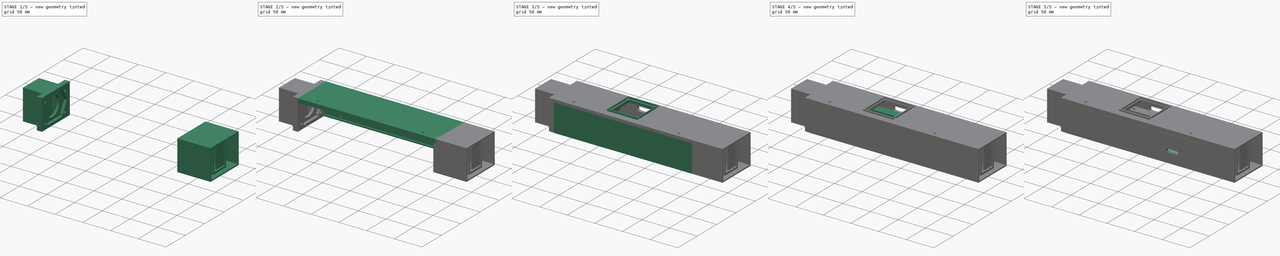
[diagram: build sequence overview — one tinted view per stage of 5, left to right]
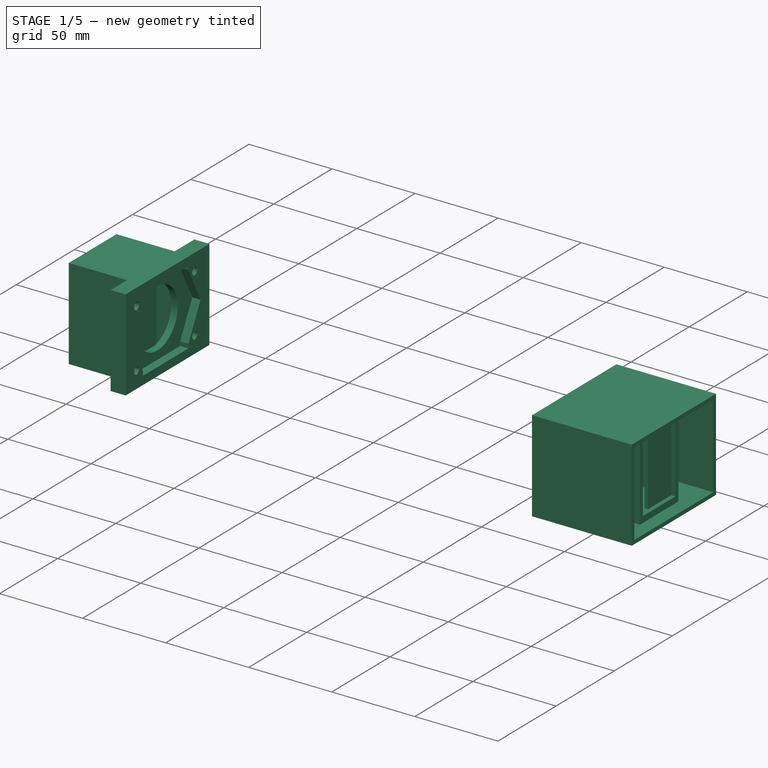
[diagram: stage 1 of 5 — iso view after this stage's code; geometry added in this stage tinted green]
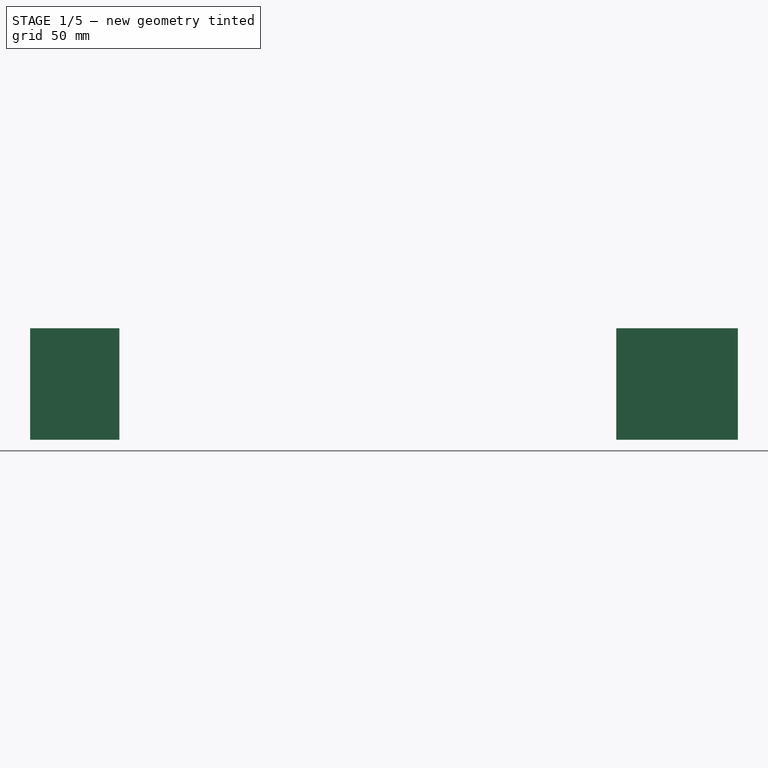
[diagram: stage 1 of 5 — front view after this stage's code; geometry added in this stage tinted green]
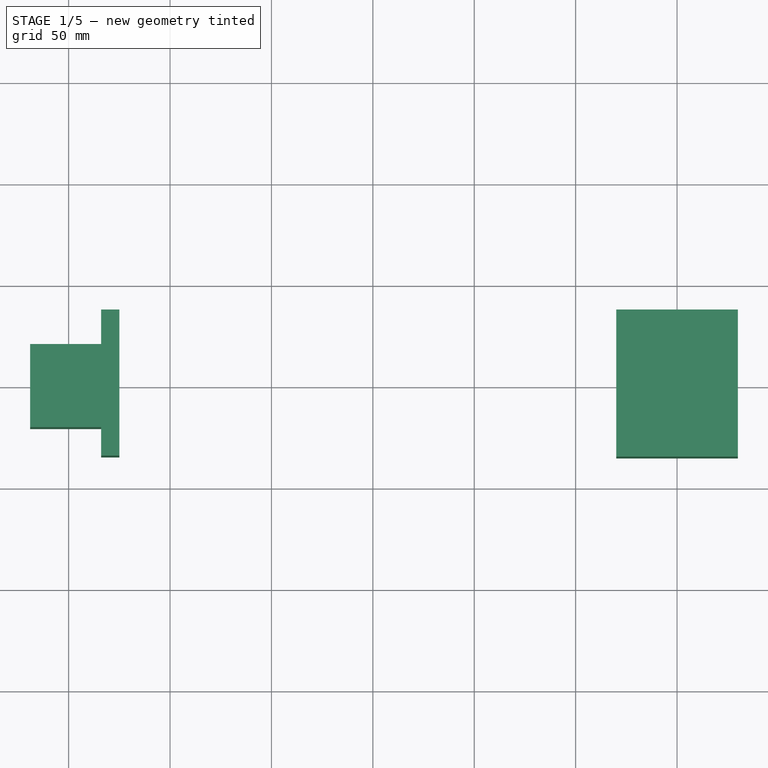
[diagram: stage 1 of 5 — top view after this stage's code; geometry added in this stage tinted green]
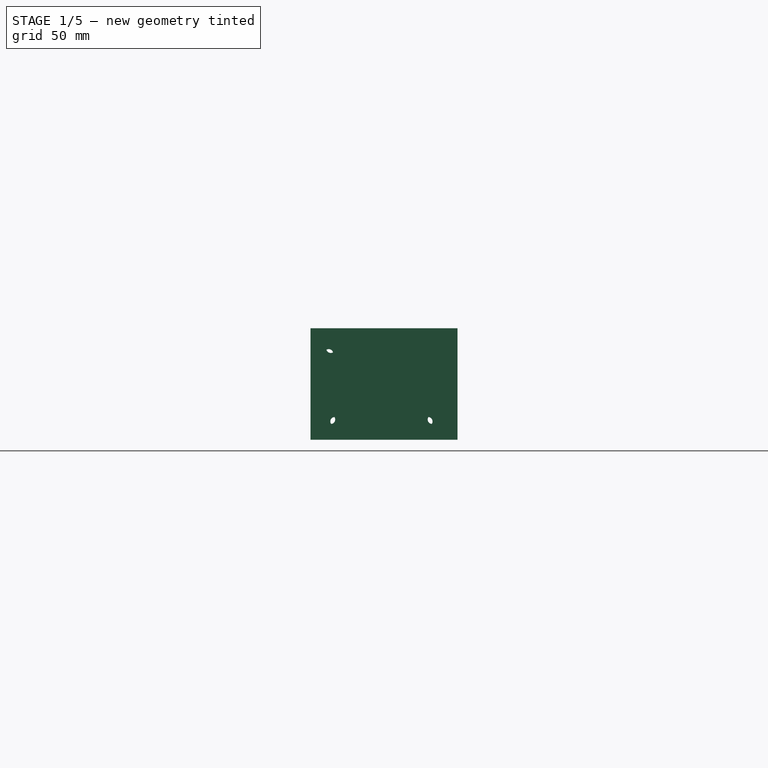
[diagram: stage 1 of 5 — right view after this stage's code; geometry added in this stage tinted green]
FCSTD DOCUMENT  (FreeCAD 0.18.4R)
Label: box_10gig_3dp
License: All rights reserved
LicenseURL: http://en.wikipedia.org/wiki/All_rights_reserved
objects: Sketcher::SketchObject×47, PartDesign::Pad×23, PartDesign::Pocket×16, PartDesign::Hole×8, Raytracing::RayFeature×4, PartDesign::Body×4, App::Part×2, App::VRMLObject×1, Part::Feature×1, Raytracing::RayProject×1
note: 146 computed .brp shape members not serialized (recipe doc carries the construction recipe); baked Part::Feature solids carry a one-line shape summary decoded from their .brp

FEATURE [PartDesign::Body] Body001  label="lid"
  Group = -> [Sketch,Pad012,Sketch023,Pocket007,Sketch024,Pocket008,Sketch025,Pad013,Sketch026,Pad014,Sketch027,Hole004,Sketch028,Hole005,Sketch029,Pocket009,Sketch030,Pocket010,Sketch031,Pad015,Sketch032,Pocket011,Sketch033,Pocket012,Sketch035,Pad016,Sketch036,Pad017]
  Origin = -> Origin
  Tip = -> Pad017
FEATURE [Sketcher::SketchObject] Sketch037
  AttachmentOffset = pos=(0,0,120) rot=(0,0,1;0rad)
  MapMode = 5
  Placement = pos=(120,-2.66e-14,2.66e-14) rot=(0.57735,0.57735,0.57735;2.0944rad)
  Support = -> [YZ_Plane006]
  sketch-geometry (4):
    g0: LineSegment StartX=-34.99 StartY=55 StartZ=0 EndX=37.51 EndY=55 EndZ=0
    g1: LineSegment StartX=37.51 StartY=55 StartZ=0 EndX=37.51 EndY=0 EndZ=0
    g2: LineSegment StartX=37.51 StartY=0 StartZ=0 EndX=-34.99 EndY=0 EndZ=0
    g3: LineSegment StartX=-34.99 StartY=0 StartZ=0 EndX=-34.99 EndY=55 EndZ=0
  constraints (12):
    c: Coincident(g0,g1)
    c: Coincident(g1,g2)
    c: Coincident(g2,g3)
    c: Coincident(g3,g0)
    c: Horizontal(g0)
    c: Horizontal(g2)
    c: Vertical(g1)
    c: Vertical(g3)
    c: PointOnObject(g1,g-1)
    c: DistanceX(g0,g0) = 72.5
    c: DistanceY(g3,g3) = 55
    c: DistanceX(g-1,g1) = 37.51
FEATURE [PartDesign::Pad] Pad018  label="baffle_outline"
  Length = 60
  Length2 = 100
  Placement = pos=(0,0,0) rot=(0.57735,0.57735,0.57735;2.0944rad)
  Profile = -> Sketch037
  Type = 0
FEATURE [Sketcher::SketchObject] Sketch038
  MapMode = 5
  Placement = pos=(120,-3.48e-14,1.56e-14) rot=(-0.57735,-0.57735,0.57735;2.0944rad)
  Support = -> [Pad018]
  sketch-geometry (5):
    g0: LineSegment StartX=35.2 StartY=-52.7 StartZ=0 EndX=-32.7 EndY=-52.7 EndZ=0
    g1: LineSegment StartX=-32.7 StartY=-52.7 StartZ=0 EndX=-32.7 EndY=-2.3 EndZ=0
    g2: LineSegment StartX=-32.7 StartY=-2.3 StartZ=0 EndX=35.2 EndY=-2.3 EndZ=0
    g3: LineSegment StartX=35.2 StartY=-2.3 StartZ=0 EndX=35.2 EndY=-52.7 EndZ=0
    g4: LineSegment [constr] StartX=0 StartY=0 StartZ=0 EndX=0 EndY=-2.3 EndZ=0
  constraints (15):
    c: Coincident(g0,g1)
    c: Coincident(g1,g2)
    c: Coincident(g2,g3)
    c: Coincident(g3,g0)
    c: Horizontal(g0)
    c: Horizontal(g2)
    c: Vertical(g1)
    c: Vertical(g3)
    c: Coincident(g4,g-1)
    c: PointOnObject(g4,g2)
    c: Vertical(g4)
    c: DistanceY(g3,g3) = 50.4
    c: DistanceX(g0,g0) = 67.9
    c: DistanceY(g4,g4) = 2.3
    c: DistanceX(g4,g2) = 35.2
FEATURE [PartDesign::Pocket] Pocket013  label="shellify"
  BaseFeature = -> Pad018
  Length = 5
  Length2 = 100
  Placement = pos=(0,0,0) rot=(0.57735,0.57735,0.57735;2.0944rad)
  Profile = -> Sketch038
  Type = 1
FEATURE [Sketcher::SketchObject] Sketch039
  ExternalGeometry = -> [Pocket013]
  MapMode = 5
  Placement = pos=(-6e-16,0,2.3) rot=(0,0,-1;1.5708rad)
  Support = -> [Pocket013]
  sketch-geometry (4):
    g0: LineSegment StartX=32.7 StartY=132 StartZ=0 EndX=-35.2 EndY=132 EndZ=0
    g1: LineSegment StartX=-35.2 StartY=132 StartZ=0 EndX=-35.2 EndY=128 EndZ=0
    g2: LineSegment StartX=-35.2 StartY=128 StartZ=0 EndX=32.7 EndY=128 EndZ=0
    g3: LineSegment StartX=32.7 StartY=128 StartZ=0 EndX=32.7 EndY=132 EndZ=0
  constraints (12):
    c: Coincident(g0,g1)
    c: Coincident(g1,g2)
    c: Coincident(g2,g3)
    c: Coincident(g3,g0)
    c: Horizontal(g0)
    c: Horizontal(g2)
    c: Vertical(g1)
    c: Vertical(g3)
    c: PointOnObject(g0,g-4)
    c: PointOnObject(g1,g-5)
    c: DistanceY(g3,g3) = 4
    c: DistanceY(g-4,g2) = 8
FEATURE [PartDesign::Pad] Pad019  label="baffle_base"
  BaseFeature = -> Pocket013
  Length = 10
  Length2 = 100
  Placement = pos=(0,0,0) rot=(0.57735,0.57735,0.57735;2.0944rad)
  Profile = -> Sketch039
  Type = 3
  UpToFace = -> Pocket013 [Face10]
FEATURE [Sketcher::SketchObject] Sketch040
  ExternalGeometry = -> [Pad019]
  MapMode = 5
  Placement = pos=(132,1.47e-14,3.66e-14) rot=(0.57735,0.57735,0.57735;2.0944rad)
  Support = -> [Pad019]
  sketch-geometry (9):
    g0: GeomPoint X=-34.99 Y=27.5 Z=0
    g1: LineSegment [constr] StartX=-34.99 StartY=42.5 StartZ=0 EndX=-25.99 EndY=42.5 EndZ=0
    g2: Circle CenterX=-25.99 CenterY=42.5 CenterZ=0 NormalX=0 NormalY=0 NormalZ=1 AngleXU=0 Radius=2.2
    g3: LineSegment [constr] StartX=-23 StartY=0 StartZ=0 EndX=-23 EndY=9 EndZ=0
    g4: LineSegment [constr] StartX=23 StartY=0 StartZ=0 EndX=23 EndY=9 EndZ=0
    g5: LineSegment [constr] StartX=23 StartY=0 StartZ=0 EndX=0 EndY=0 EndZ=0
    g6: LineSegment [constr] StartX=0 StartY=0 StartZ=0 EndX=-23 EndY=0 EndZ=0
    g7: Circle CenterX=-23 CenterY=9 CenterZ=0 NormalX=0 NormalY=0 NormalZ=1 AngleXU=0 Radius=2.2
    g8: Circle CenterX=23 CenterY=9 CenterZ=0 NormalX=0 NormalY=0 NormalZ=1 AngleXU=0 Radius=2.2
  constraints (23):
    c: Symmetric(g-3,g-3,g0)
    c: PointOnObject(g1,g-3)
    c: Horizontal(g1)
    c: DistanceY(g0,g1) = 15
    c: Coincident(g2,g1)
    c: PointOnObject(g3,g-1)
    c: Vertical(g3)
    c: PointOnObject(g4,g-1)
    c: Vertical(g4)
    c: Coincident(g5,g4)
    c: Coincident(g5,g-1)
    c: Coincident(g6,g-1)
    c: Coincident(g6,g3)
    c: Equal(g5,g6)
    c: DistanceX(g6,g6) = 23
    c: Equal(g4,g3)
    c: DistanceY(g4,g4) = 9
    c: Coincident(g7,g3)
    c: Coincident(g8,g4)
    c: Equal(g8,g7)
    c: Equal(g7,g2)
    c: Diameter(g2) = 4.4
    c: DistanceX(g1,g1) = 9
FEATURE [PartDesign::Hole] Hole006  label="mountingholes"
  BaseFeature = -> Pad019
  Depth = 25
  DepthType = 0
  Diameter = 4.4
  DrillPoint = 1
  DrillPointAngle = 118
  HoleCutCountersinkAngle = 90
  HoleCutDepth = 0
  HoleCutDiameter = 4
  HoleCutType = 0
  ModelActualThread = false
  Placement = pos=(0,0,0) rot=(0.57735,0.57735,0.57735;2.0944rad)
  Profile = -> Sketch040
  Tapered = false
  TaperedAngle = 90
  ThreadAngle = 0
  ThreadClass = 0
  ThreadCutOffInner = 0
  ThreadCutOffOuter = 0
  ThreadDirection = 0
  ThreadFit = 0
  ThreadPitch = 0
  ThreadSize = 5
  ThreadType = 1
  Threaded = false
FEATURE [Sketcher::SketchObject] Sketch041
  ExternalGeometry = -> [Hole006]
  MapMode = 5
  Placement = pos=(132,1.47e-14,5.13e-14) rot=(0.57735,0.57735,0.57735;2.0944rad)
  Support = -> [Hole006]
  sketch-geometry (6):
    g0: LineSegment StartX=-14 StartY=49 StartZ=0 EndX=14 EndY=49 EndZ=0
    g1: LineSegment StartX=14 StartY=49 StartZ=0 EndX=14 EndY=6 EndZ=0
    g2: LineSegment StartX=14 StartY=6 StartZ=0 EndX=-14 EndY=6 EndZ=0
    g3: LineSegment StartX=-14 StartY=6 StartZ=0 EndX=-14 EndY=49 EndZ=0
    g4: LineSegment [constr] StartX=0 StartY=52.7 StartZ=0 EndX=0 EndY=49 EndZ=0
    g5: LineSegment [constr] StartX=0 StartY=6 StartZ=0 EndX=0 EndY=2.3 EndZ=0
  constraints (19):
    c: Coincident(g0,g1)
    c: Coincident(g1,g2)
    c: Coincident(g2,g3)
    c: Coincident(g3,g0)
    c: Horizontal(g2)
    c: Vertical(g1)
    c: Vertical(g3)
    c: Symmetric(g0,g0,g-2)
    c: PointOnObject(g4,g-3)
    c: PointOnObject(g4,g0)
    c: PointOnObject(g5,g2)
    c: PointOnObject(g5,g-4)
    c: PointOnObject(g5,g-2)
    c: Vertical(g5)
    c: Vertical(g4)
    c: PointOnObject(g4,g-2)
    c: Equal(g5,g4)
    c: DistanceX(g0,g0) = 28
    c: DistanceY(g1,g1) = 43
FEATURE [PartDesign::Pocket] Pocket014  label="baffle_hole"
  BaseFeature = -> Hole006
  Length = 5
  Length2 = 100
  Placement = pos=(0,0,0) rot=(0.57735,0.57735,0.57735;2.0944rad)
  Profile = -> Sketch041
  Type = 2
FEATURE [Sketcher::SketchObject] Sketch042
  ExternalGeometry = -> [Pocket014]
  MapMode = 5
  Placement = pos=(132,1.47e-14,6.59e-14) rot=(0.57735,0.57735,0.57735;2.0944rad)
  Support = -> [Pocket014]
  sketch-geometry (9):
    g0: GeomPoint X=-4e-16 Y=27.5 Z=0
    g1: LineSegment StartX=-14 StartY=49 StartZ=0 EndX=14 EndY=49 EndZ=0
    g2: LineSegment StartX=14 StartY=49 StartZ=0 EndX=14 EndY=6 EndZ=0
    g3: LineSegment StartX=14 StartY=6 StartZ=0 EndX=-14 EndY=6 EndZ=0
    g4: LineSegment StartX=-14 StartY=6 StartZ=0 EndX=-14 EndY=49 EndZ=0
    g5: LineSegment StartX=16.5 StartY=2.3 StartZ=0 EndX=-16.5 EndY=2.3 EndZ=0
    g6: LineSegment StartX=-16.5 StartY=2.3 StartZ=0 EndX=-16.5 EndY=52.7 EndZ=0
    g7: LineSegment StartX=-16.5 StartY=52.7 StartZ=0 EndX=16.5 EndY=52.7 EndZ=0
    g8: LineSegment StartX=16.5 StartY=52.7 StartZ=0 EndX=16.5 EndY=2.3 EndZ=0
  constraints (22):
    c: Symmetric(g-4,g-3,g0)
    c: Coincident(g1,g2)
    c: Coincident(g2,g3)
    c: Coincident(g3,g4)
    c: Coincident(g4,g1)
    c: Horizontal(g1)
    c: Horizontal(g3)
    c: Vertical(g2)
    c: Vertical(g4)
    c: Coincident(g5,g6)
    c: Coincident(g6,g7)
    c: Coincident(g7,g8)
    c: Coincident(g8,g5)
    c: Horizontal(g5)
    c: Horizontal(g7)
    c: Vertical(g6)
    c: Vertical(g8)
    c: Coincident(g1,g-3)
    c: Coincident(g2,g-4)
    c: Symmetric(g5,g6,g0)
    c: DistanceX(g1,g7) = 2.5
    c: PointOnObject(g6,g-5)
FEATURE [PartDesign::Pad] Pad020  label="baffle_box"
  BaseFeature = -> Pocket014
  Length = 40
  Length2 = 100
  Placement = pos=(0,0,0) rot=(0.57735,0.57735,0.57735;2.0944rad)
  Profile = -> Sketch042
  Type = 0
FEATURE [Sketcher::SketchObject] Sketch043
  ExternalGeometry = -> [Pad020]
  MapMode = 5
  Placement = pos=(-4.3e-15,0,6) rot=(0,0,-1;1.5708rad)
  Support = -> [Pad020]
  sketch-geometry (14):
    g0: LineSegment StartX=-14 StartY=169.5 StartZ=0 EndX=6 EndY=169.5 EndZ=0
    g1: LineSegment StartX=6 StartY=169.5 StartZ=0 EndX=6 EndY=167.5 EndZ=0
    g2: LineSegment StartX=6 StartY=167.5 StartZ=0 EndX=-14 EndY=167.5 EndZ=0
    g3: LineSegment StartX=-14 StartY=167.5 StartZ=0 EndX=-14 EndY=169.5 EndZ=0
    g4: LineSegment StartX=14 StartY=157.75 StartZ=0 EndX=-6 EndY=157.75 EndZ=0
    g5: LineSegment StartX=-6 StartY=157.75 StartZ=0 EndX=-6 EndY=155.75 EndZ=0
    g6: LineSegment StartX=-6 StartY=155.75 StartZ=0 EndX=14 EndY=155.75 EndZ=0
    g7: LineSegment StartX=14 StartY=155.75 StartZ=0 EndX=14 EndY=157.75 EndZ=0
    g8: LineSegment StartX=-14 StartY=146 StartZ=0 EndX=6 EndY=146 EndZ=0
    g9: LineSegment StartX=6 StartY=146 StartZ=0 EndX=6 EndY=144 EndZ=0
    g10: LineSegment StartX=6 StartY=144 StartZ=0 EndX=-14 EndY=144 EndZ=0
    g11: LineSegment StartX=-14 StartY=144 StartZ=0 EndX=-14 EndY=146 EndZ=0
    g12: LineSegment [constr] StartX=6 StartY=146 StartZ=0 EndX=-6 EndY=155.75 EndZ=0
    g13: LineSegment [constr] StartX=-6 StartY=157.75 StartZ=0 EndX=6 EndY=167.5 EndZ=0
  constraints (40):
    c: Coincident(g0,g1)
    c: Coincident(g1,g2)
    c: Coincident(g2,g3)
    c: Coincident(g3,g0)
    c: Horizontal(g0)
    c: Horizontal(g2)
    c: Vertical(g1)
    c: Vertical(g3)
    c: PointOnObject(g0,g-4)
    c: Coincident(g4,g5)
    c: Coincident(g5,g6)
    c: Coincident(g6,g7)
    c: Coincident(g7,g4)
    c: Horizontal(g4)
    c: Horizontal(g6)
    c: Vertical(g5)
    c: Vertical(g7)
    c: PointOnObject(g4,g-6)
    c: Coincident(g8,g9)
    c: Coincident(g9,g10)
    c: Coincident(g10,g11)
    c: Coincident(g11,g8)
    c: Horizontal(g8)
    c: Horizontal(g10)
    c: Vertical(g9)
    c: Vertical(g11)
    c: PointOnObject(g8,g-4)
    c: Equal(g0,g4)
    c: Equal(g4,g8)
    c: Equal(g1,g5)
    c: Equal(g5,g9)
    c: DistanceX(g10,g10) = 20
    c: DistanceY(g7,g7) = 2
    c: Coincident(g12,g8)
    c: Coincident(g13,g4)
    c: Coincident(g13,g1)
    c: Coincident(g12,g5)
    c: Equal(g12,g13)
    c: DistanceY(g0,g-4) = 2.5
    c: DistanceY(g-5,g10) = 12
FEATURE [PartDesign::Pad] Pad021  label="baffle"
  BaseFeature = -> Pad020
  Length = 10
  Length2 = 100
  Placement = pos=(0,0,0) rot=(0.57735,0.57735,0.57735;2.0944rad)
  Profile = -> Sketch043
  Type = 2
FEATURE [PartDesign::Body] Body002  label="rear_baffle"
  Group = -> [Sketch037,Pad018,Sketch038,Pocket013,Sketch039,Pad019,Sketch040,Hole006,Sketch041,Pocket014,Sketch042,Pad020,Sketch043,Pad021]
  Origin = -> Origin006
  Tip = -> Pad021
FEATURE [Sketcher::SketchObject] Sketch044
  AttachmentOffset = pos=(0,0,-130) rot=(0,0,1;0rad)
  MapMode = 5
  Placement = pos=(-130,2.89e-14,-2.89e-14) rot=(0.57735,0.57735,0.57735;2.0944rad)
  Support = -> [YZ_Plane007]
  sketch-geometry (4):
    g0: LineSegment StartX=37.5 StartY=0 StartZ=0 EndX=-34.5 EndY=0 EndZ=0
    g1: LineSegment StartX=-34.5 StartY=0 StartZ=0 EndX=-34.5 EndY=55 EndZ=0
    g2: LineSegment StartX=-34.5 StartY=55 StartZ=0 EndX=37.5 EndY=55 EndZ=0
    g3: LineSegment StartX=37.5 StartY=55 StartZ=0 EndX=37.5 EndY=0 EndZ=0
  constraints (12):
    c: Coincident(g0,g1)
    c: Coincident(g1,g2)
    c: Coincident(g2,g3)
    c: Coincident(g3,g0)
    c: Horizontal(g0)
    c: Horizontal(g2)
    c: Vertical(g1)
    c: Vertical(g3)
    c: PointOnObject(g0,g-1)
    c: DistanceX(g2,g2) = 72
    c: DistanceY(g3,g3) = 55
    c: DistanceX(g-1,g0) = 37.5
FEATURE [PartDesign::Pad] Pad022
  Length = 4
  Length2 = 100
  Placement = pos=(0,0,0) rot=(0.57735,0.57735,0.57735;2.0944rad)
  Profile = -> Sketch044
  Reversed = true
  Type = 0
FEATURE [Sketcher::SketchObject] Sketch045
  MapMode = 5
  Placement = pos=(-134,2.68e-14,-3.48e-14) rot=(0.57735,0.57735,-0.57735;4.18879rad)
  Support = -> [Pad022]
  sketch-geometry (9):
    g0: GeomPoint X=0 Y=-27.5 Z=0
    g1: LineSegment [constr] StartX=25 StartY=-45 StartZ=0 EndX=-25 EndY=-45 EndZ=0
    g2: LineSegment [constr] StartX=-25 StartY=-45 StartZ=0 EndX=-25 EndY=-10 EndZ=0
    g3: LineSegment [constr] StartX=-25 StartY=-10 StartZ=0 EndX=25 EndY=-10 EndZ=0
    g4: LineSegment [constr] StartX=25 StartY=-10 StartZ=0 EndX=25 EndY=-45 EndZ=0
    g5: Circle CenterX=-25 CenterY=-10 CenterZ=0 NormalX=0 NormalY=0 NormalZ=1 AngleXU=0 Radius=2.2
    g6: Circle CenterX=-25 CenterY=-45 CenterZ=0 NormalX=0 NormalY=0 NormalZ=1 AngleXU=0 Radius=2.2
    g7: Circle CenterX=25 CenterY=-45 CenterZ=0 NormalX=0 NormalY=0 NormalZ=1 AngleXU=0 Radius=2.2
    g8: Circle CenterX=25 CenterY=-10 CenterZ=0 NormalX=0 NormalY=0 NormalZ=1 AngleXU=0 Radius=2.2
  constraints (21):
    c: Coincident(g1,g2)
    c: Coincident(g2,g3)
    c: Coincident(g3,g4)
    c: Coincident(g4,g1)
    c: Horizontal(g1)
    c: Horizontal(g3)
    c: Vertical(g2)
    c: Vertical(g4)
    c: DistanceY(g2,g2) = 35
    c: DistanceX(g1,g1) = 50
    c: Symmetric(g3,g1,g0)
    c: PointOnObject(g0,g-2)
    c: DistanceY(g0,g-1) = 27.5
    c: Coincident(g5,g2)
    c: Coincident(g6,g1)
    c: Coincident(g7,g1)
    c: Coincident(g8,g3)
    c: Equal(g8,g5)
    c: Equal(g5,g6)
    c: Equal(g6,g7)
    c: Diameter(g5) = 4.4
FEATURE [App::Part] Part
  Group = -> [Body001,_0X28P3_FRAME_HOOK,multi_smtpa_linear,Body_View,Body,Body002,Body003]
  Origin = -> Origin005
FEATURE [PartDesign::Body] Body003  label="front_baffle"
  Group = -> [Sketch044,Pad022,Sketch045,Sketch046,Pocket015,Sketch047,Pad023,Hole007,Sketch048,Pad024,Sketch049,Pad025]
  Origin = -> Origin007
  Tip = -> Pad025
FEATURE [PartDesign::Hole] Hole007
  BaseFeature = -> Pad023
  Depth = 25
  DepthType = 0
  Diameter = 4.4
  DrillPoint = 1
  DrillPointAngle = 118
  HoleCutCountersinkAngle = 90
  HoleCutDepth = 0
  HoleCutDiameter = 4
  HoleCutType = 0
  ModelActualThread = false
  Placement = pos=(0,0,0) rot=(0.57735,0.57735,0.57735;2.0944rad)
  Profile = -> Sketch045
  Tapered = false
  TaperedAngle = 90
  ThreadAngle = 0
  ThreadClass = 0
  ThreadCutOffInner = 0
  ThreadCutOffOuter = 0
  ThreadDirection = 0
  ThreadFit = 0
  ThreadPitch = 0
  ThreadSize = 5
  ThreadType = 1
  Threaded = false
FEATURE [Sketcher::SketchObject] Sketch046
  MapMode = 5
  Placement = pos=(-134,2.68e-14,-3.48e-14) rot=(0.57735,0.57735,-0.57735;4.18879rad)
  Support = -> [Hole007]
  sketch-geometry (1):
    g0: Circle CenterX=0 CenterY=-27.5 CenterZ=0 NormalX=0 NormalY=0 NormalZ=1 AngleXU=0 Radius=17.5
  constraints (3):
    c: PointOnObject(g0,g-2)
    c: DistanceY(g0,g-1) = 27.5
    c: Diameter(g0) = 35
FEATURE [PartDesign::Pocket] Pocket015
  BaseFeature = -> Pad022
  Length = 5
  Length2 = 100
  Placement = pos=(0,0,0) rot=(0.57735,0.57735,0.57735;2.0944rad)
  Profile = -> Sketch046
  Type = 1
FEATURE [Sketcher::SketchObject] Sketch047
  ExternalGeometry = -> [Pocket015]
  MapMode = 5
  Placement = pos=(-130,2.6e-14,-3.38e-14) rot=(0.57735,0.57735,0.57735;2.0944rad)
  Support = -> [Pocket015]
  sketch-geometry (15):
    g0: LineSegment StartX=-34.5 StartY=55 StartZ=0 EndX=37.5 EndY=55 EndZ=0
    g1: LineSegment StartX=37.5 StartY=55 StartZ=0 EndX=37.5 EndY=-2.13e-14 EndZ=0
    g2: LineSegment StartX=37.5 StartY=-2.13e-14 StartZ=0 EndX=-34.5 EndY=-2.13e-14 EndZ=0
    g3: LineSegment StartX=-34.5 StartY=-2.13e-14 StartZ=0 EndX=-34.5 EndY=55 EndZ=0
    g4: LineSegment StartX=-30 StartY=27.5 StartZ=0 EndX=-19.5 EndY=7.5 EndZ=0
    g5: LineSegment StartX=-19.5 StartY=7.5 StartZ=0 EndX=-19.5 EndY=5 EndZ=0
    g6: LineSegment StartX=-19.5 StartY=5 StartZ=0 EndX=19.5 EndY=5 EndZ=0
    g7: LineSegment StartX=19.5 StartY=5 StartZ=0 EndX=19.5 EndY=7.5 EndZ=0
    g8: LineSegment StartX=19.5 StartY=7.5 StartZ=0 EndX=30 EndY=27.5 EndZ=0
    g9: LineSegment StartX=30 StartY=27.5 StartZ=0 EndX=19.5 EndY=47.5 EndZ=0
    g10: LineSegment StartX=19.5 StartY=47.5 StartZ=0 EndX=19.5 EndY=50 EndZ=0
    g11: LineSegment StartX=19.5 StartY=50 StartZ=0 EndX=-19.5 EndY=50 EndZ=0
    g12: LineSegment StartX=-19.5 StartY=50 StartZ=0 EndX=-19.5 EndY=47.5 EndZ=0
    g13: LineSegment StartX=-19.5 StartY=47.5 StartZ=0 EndX=-30 EndY=27.5 EndZ=0
    g14: LineSegment [constr] StartX=-30 StartY=27.5 StartZ=0 EndX=30 EndY=27.5 EndZ=0
  constraints (38):
    c: Coincident(g0,g1)
    c: Coincident(g1,g2)
    c: Coincident(g2,g3)
    c: Coincident(g3,g0)
    c: Horizontal(g0)
    c: Horizontal(g2)
    c: Vertical(g1)
    c: Vertical(g3)
    c: Coincident(g0,g-3)
    c: Coincident(g1,g-4)
    c: Coincident(g4,g5)
    c: Vertical(g5)
    c: Coincident(g5,g6)
    c: Coincident(g6,g7)
    c: Vertical(g7)
    c: Coincident(g7,g8)
    c: Coincident(g9,g10)
    c: Vertical(g10)
    c: Coincident(g10,g11)
    c: Coincident(g11,g12)
    c: Vertical(g12)
    c: Coincident(g12,g13)
    c: DistanceY(g11,g0) = 5
    c: DistanceY(g1,g6) = 5
    c: DistanceX(g10,g0) = 18
    c: Symmetric(g10,g11,g-2)
    c: Symmetric(g6,g5,g-2)
    c: Coincident(g8,g9)
    c: Coincident(g13,g4)
    c: Coincident(g14,g4)
    c: Coincident(g14,g8)
    c: Symmetric(g4,g8,g-2)
    c: Symmetric(g6,g10,g14)
    c: DistanceX(g14,g14) = 60
    c: Equal(g10,g12)
    c: Equal(g12,g5)
    c: Equal(g5,g7)
    c: DistanceY(g10,g10) = 2.5
FEATURE [PartDesign::Pad] Pad023
  BaseFeature = -> Pocket015
  Length = 5
  Length2 = 100
  Placement = pos=(0,0,0) rot=(0.57735,0.57735,0.57735;2.0944rad)
  Profile = -> Sketch047
  Type = 0
FEATURE [Sketcher::SketchObject] Sketch048
  ExternalGeometry = -> [Hole007]
  MapMode = 5
  Placement = pos=(-134,2.68e-14,-3.48e-14) rot=(0.57735,0.57735,-0.57735;4.18879rad)
  Support = -> [Hole007]
  sketch-geometry (10):
    g0: LineSegment StartX=-17.5 StartY=-3 StartZ=0 EndX=17.5 EndY=-3 EndZ=0
    g1: LineSegment StartX=17.5 StartY=-3 StartZ=0 EndX=17.5 EndY=-52 EndZ=0
    g2: LineSegment StartX=17.5 StartY=-52 StartZ=0 EndX=-17.5 EndY=-52 EndZ=0
    g3: LineSegment StartX=-17.5 StartY=-52 StartZ=0 EndX=-17.5 EndY=-3 EndZ=0
    g4: LineSegment StartX=20.5 StartY=1.208e-13 StartZ=0 EndX=-20.5 EndY=1.208e-13 EndZ=0
    g5: LineSegment StartX=-20.5 StartY=1.208e-13 StartZ=0 EndX=-20.5 EndY=-55 EndZ=0
    g6: LineSegment StartX=-20.5 StartY=-55 StartZ=0 EndX=20.5 EndY=-55 EndZ=0
    g7: LineSegment StartX=20.5 StartY=-55 StartZ=0 EndX=20.5 EndY=1.208e-13 EndZ=0
    g8: GeomPoint X=-17.5 Y=-27.5 Z=0
    g9: LineSegment [constr] StartX=0 StartY=-27.5 StartZ=0 EndX=-17.5 EndY=-27.5 EndZ=0
  constraints (26):
    c: Coincident(g0,g1)
    c: Coincident(g1,g2)
    c: Coincident(g2,g3)
    c: Coincident(g3,g0)
    c: Horizontal(g0)
    c: Horizontal(g2)
    c: Vertical(g1)
    c: Vertical(g3)
    c: Coincident(g4,g5)
    c: Coincident(g5,g6)
    c: Coincident(g6,g7)
    c: Coincident(g7,g4)
    c: Horizontal(g4)
    c: Horizontal(g6)
    c: Vertical(g5)
    c: Vertical(g7)
    c: Symmetric(g0,g1,g-3)
    c: Symmetric(g4,g6,g-3)
    c: DistanceX(g5,g2) = 3
    c: PointOnObject(g8,g3)
    c: PointOnObject(g8,g-3)
    c: Coincident(g9,g-3)
    c: Coincident(g9,g8)
    c: Horizontal(g9)
    c: PointOnObject(g5,g-4)
    c: DistanceY(g0,g4) = 3
FEATURE [PartDesign::Pad] Pad024
  BaseFeature = -> Hole007
  Length = 35
  Length2 = 100
  Placement = pos=(0,0,0) rot=(0.57735,0.57735,0.57735;2.0944rad)
  Profile = -> Sketch048
  Type = 0
FEATURE [Sketcher::SketchObject] Sketch049
  ExternalGeometry = -> [Pad024]
  MapMode = 5
  Placement = pos=(-2.5e-15,1.5e-15,3) rot=(0,0,-1;1.5708rad)
  Support = -> [Pad024]
  sketch-geometry (14):
    g0: LineSegment StartX=-17.5 StartY=-143 StartZ=0 EndX=4.5 EndY=-143 EndZ=0
    g1: LineSegment StartX=4.5 StartY=-143 StartZ=0 EndX=4.5 EndY=-145.5 EndZ=0
    g2: LineSegment StartX=4.5 StartY=-145.5 StartZ=0 EndX=-17.5 EndY=-145.5 EndZ=0
    g3: LineSegment StartX=-17.5 StartY=-145.5 StartZ=0 EndX=-17.5 EndY=-143 EndZ=0
    g4: LineSegment StartX=17.5 StartY=-153.5 StartZ=0 EndX=-4.5 EndY=-153.5 EndZ=0
    g5: LineSegment StartX=-4.5 StartY=-153.5 StartZ=0 EndX=-4.5 EndY=-156 EndZ=0
    g6: LineSegment StartX=-4.5 StartY=-156 StartZ=0 EndX=17.5 EndY=-156 EndZ=0
    g7: LineSegment StartX=17.5 StartY=-156 StartZ=0 EndX=17.5 EndY=-153.5 EndZ=0
    g8: LineSegment StartX=-17.5 StartY=-164 StartZ=0 EndX=4.5 EndY=-164 EndZ=0
    g9: LineSegment StartX=4.5 StartY=-164 StartZ=0 EndX=4.5 EndY=-166.5 EndZ=0
    g10: LineSegment StartX=4.5 StartY=-166.5 StartZ=0 EndX=-17.5 EndY=-166.5 EndZ=0
    g11: LineSegment StartX=-17.5 StartY=-166.5 StartZ=0 EndX=-17.5 EndY=-164 EndZ=0
    g12: LineSegment [constr] StartX=4.5 StartY=-164 StartZ=0 EndX=-4.5 EndY=-156 EndZ=0
    g13: LineSegment [constr] StartX=-4.5 StartY=-153.5 StartZ=0 EndX=4.5 EndY=-145.5 EndZ=0
  constraints (40):
    c: Coincident(g0,g1)
    c: Coincident(g1,g2)
    c: Coincident(g2,g3)
    c: Coincident(g3,g0)
    c: Horizontal(g0)
    c: Horizontal(g2)
    c: Vertical(g1)
    c: Vertical(g3)
    c: PointOnObject(g0,g-3)
    c: Coincident(g4,g5)
    c: Coincident(g5,g6)
    c: Coincident(g6,g7)
    c: Coincident(g7,g4)
    c: Horizontal(g4)
    c: Horizontal(g6)
    c: Vertical(g5)
    c: Vertical(g7)
    c: PointOnObject(g4,g-4)
    c: Coincident(g8,g9)
    c: Coincident(g9,g10)
    c: Coincident(g10,g11)
    c: Coincident(g11,g8)
    c: Horizontal(g8)
    c: Horizontal(g10)
    c: Vertical(g9)
    c: Vertical(g11)
    c: PointOnObject(g8,g-3)
    c: Equal(g4,g0)
    c: Equal(g0,g8)
    c: DistanceX(g0,g0) = 22
    c: Equal(g5,g1)
    c: Equal(g1,g9)
    c: DistanceY(g1,g1) = 2.5
    c: Coincident(g12,g8)
    c: Coincident(g12,g5)
    c: Coincident(g13,g4)
    c: Coincident(g13,g1)
    c: Equal(g13,g12)
    c: DistanceY(g-6,g10) = 2.5
    c: DistanceY(g8,g5) = 8
FEATURE [PartDesign::Pad] Pad025
  BaseFeature = -> Pad024
  Length = 10
  Length2 = 100
  Placement = pos=(0,0,0) rot=(0.57735,0.57735,0.57735;2.0944rad)
  Profile = -> Sketch049
  Type = 2
note: 1 file-system path scrubbed to <path> (originals preserved in the JSON sidecar)
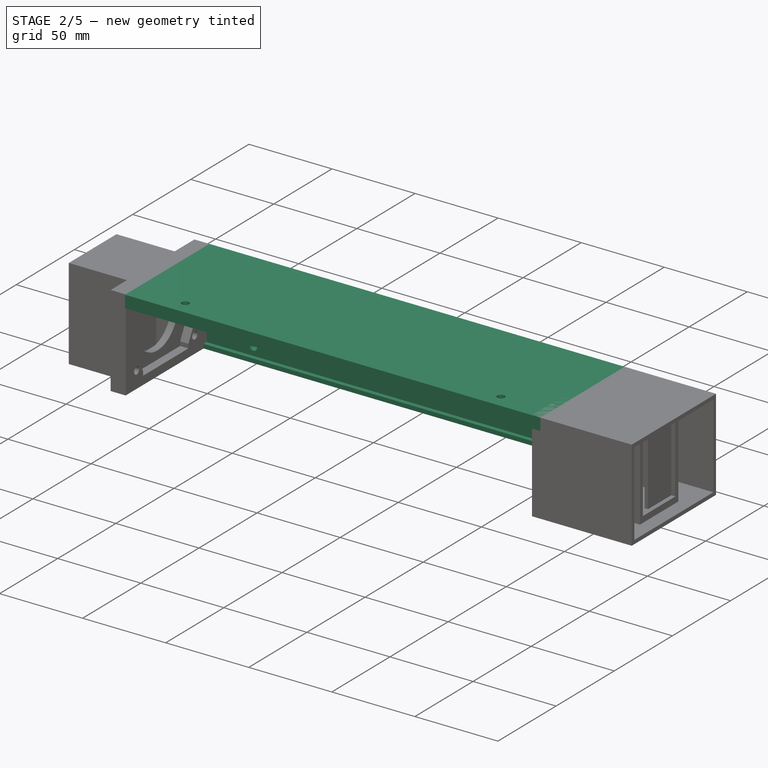
[diagram: stage 2 of 5 — iso view after this stage's code; geometry added in this stage tinted green]
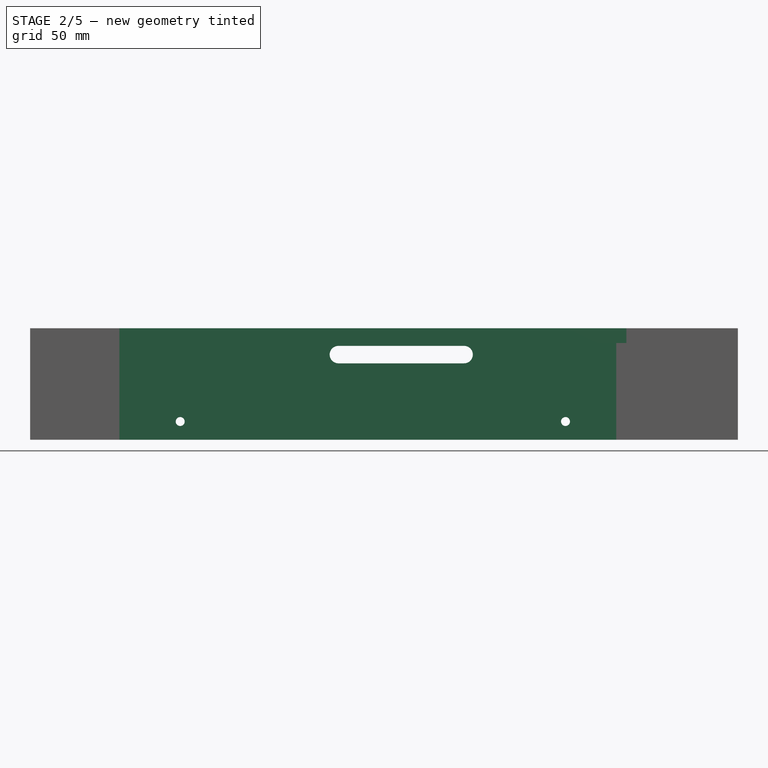
[diagram: stage 2 of 5 — front view after this stage's code; geometry added in this stage tinted green]
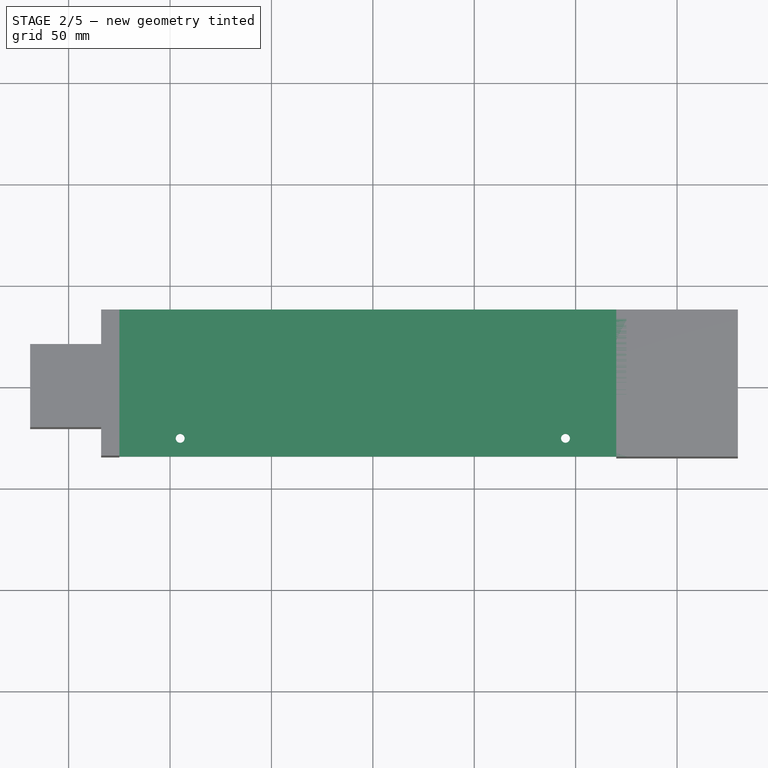
[diagram: stage 2 of 5 — top view after this stage's code; geometry added in this stage tinted green]
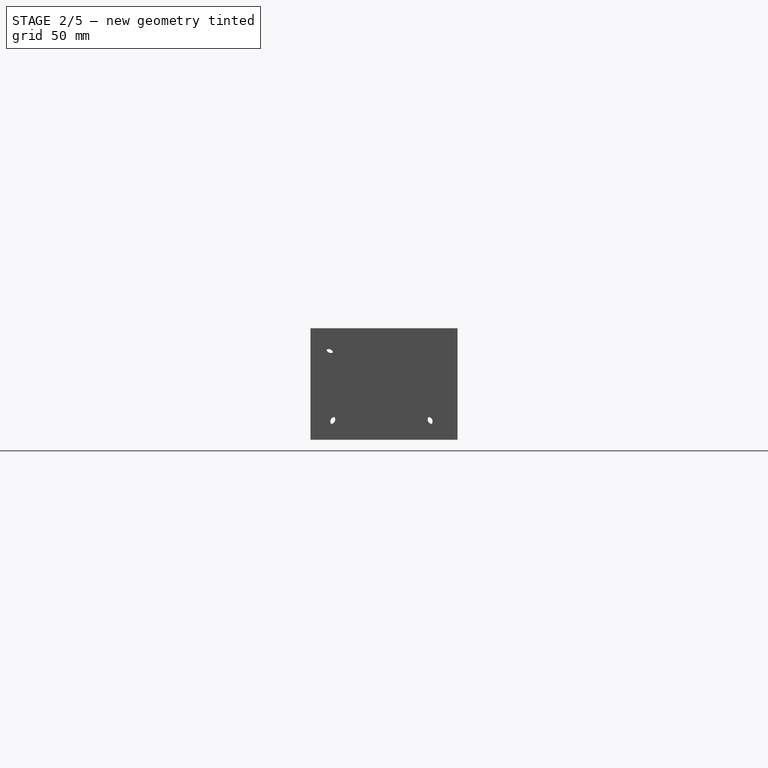
[diagram: stage 2 of 5 — right view after this stage's code; geometry added in this stage tinted green]
FEATURE [PartDesign::Body] Body  label="bottom"
  Group = -> [Pad,Sketch001,Pad003,Sketch002,Pad004,Sketch005,Pad006,Sketch006,Pocket,Sketch007,Pad007,Sketch008,Pocket001,Sketch009,Pocket002,Sketch010,Pocket003,Sketch011,Pocket004,Sketch012,Pad008,Sketch013,Hole,Sketch014,Hole001,Sketch015,Pocket005,Sketch016,Hole002,Sketch017,Pad009,Sketch019,Pad010,Sketch020,Hole003,Sketch021,Pad011,Sketch022,Pocket006]
  Origin = -> Origin001
  Tip = -> Pocket006
FEATURE [Raytracing::RayFeature] Body_View
  Result = <blob: 279146 chars omitted>
  Source = -> Body
  Transparency = 0
FEATURE [Raytracing::RayProject] PovProject
  Camera = // declares position and view direction\n\n// Generated by FreeCAD (http://www.freecadweb.org/)\n#declare cam_location =  <-290.453,53.4225,67.8351>;\n#declare cam_look_at  = <35.6243,3.04154,-2.65304>;\n#declare cam_sky      = <0.148622,0.988709,-0.0191511>;\n#declare cam_angle    = 45; \ncamera {\n  location  cam_location\n  look_at   cam_look_at\n  sky       cam_sky\n  angle     cam_angle \n  right x*3648/2736\n}
  Group = -> [Body_View,Body001_View,Body002_View,Body003_View]
  Template = <path>
FEATURE [PartDesign::Pad] Pad012
  Length = 55
  Length2 = 100
  Profile = -> Sketch
  Type = 0
FEATURE [Sketcher::SketchObject] Sketch023
  ExternalGeometry = -> [Pad012]
  MapMode = 5
  Placement = pos=(125,0,0) rot=(0.57735,0.57735,0.57735;2.0944rad)
  Support = -> [Pad012]
  sketch-geometry (4):
    g0: LineSegment StartX=32.5 StartY=2.5 StartZ=0 EndX=35.1 EndY=2.5 EndZ=0
    g1: LineSegment StartX=35.1 StartY=2.5 StartZ=0 EndX=35.1 EndY=5.1 EndZ=0
    g2: LineSegment StartX=35.1 StartY=5.1 StartZ=0 EndX=32.5 EndY=5.1 EndZ=0
    g3: LineSegment StartX=32.5 StartY=5.1 StartZ=0 EndX=32.5 EndY=2.5 EndZ=0
  constraints (12):
    c: Coincident(g0,g1)
    c: Coincident(g1,g2)
    c: Coincident(g2,g3)
    c: Coincident(g3,g0)
    c: Horizontal(g0)
    c: Horizontal(g2)
    c: Vertical(g1)
    c: Vertical(g3)
    c: PointOnObject(g0,g-3)
    c: DistanceY(g-3,g0) = 2.5
    c: Equal(g3,g2)
    c: DistanceX(g2,g2) = 2.6
FEATURE [PartDesign::Pocket] Pocket007
  BaseFeature = -> Pad012
  Length = 14
  Length2 = 100
  Profile = -> Sketch023
  Type = 1
FEATURE [Sketcher::SketchObject] Sketch024
  ExternalGeometry = -> [Pocket007]
  MapMode = 5
  Placement = pos=(0,0,5.1) rot=(1,0,0;3.14159rad)
  Support = -> [Pocket007]
  sketch-geometry (4):
    g0: LineSegment StartX=-125 StartY=-32.5 StartZ=0 EndX=-119.9 EndY=-32.5 EndZ=0
    g1: LineSegment StartX=-119.9 StartY=-32.5 StartZ=0 EndX=-119.9 EndY=-35.1 EndZ=0
    g2: LineSegment StartX=-119.9 StartY=-35.1 StartZ=0 EndX=-125 EndY=-35.1 EndZ=0
    g3: LineSegment StartX=-125 StartY=-35.1 StartZ=0 EndX=-125 EndY=-32.5 EndZ=0
  constraints (11):
    c: Coincident(g0,g1)
    c: Coincident(g1,g2)
    c: Coincident(g2,g3)
    c: Coincident(g3,g0)
    c: Horizontal(g0)
    c: Horizontal(g2)
    c: Vertical(g1)
    c: Vertical(g3)
    c: Coincident(g0,g-4)
    c: DistanceY(g1,g1) = 2.6
    c: DistanceX(g0,g0) = 5.1
FEATURE [PartDesign::Pocket] Pocket008
  BaseFeature = -> Pocket007
  Length = 45
  Length2 = 100
  Profile = -> Sketch024
  Type = 0
FEATURE [Sketcher::SketchObject] Sketch025
  ExternalGeometry = -> [Pocket008]
  MapMode = 5
  Placement = pos=(0,32.5,0) rot=(1,0,0;1.5708rad)
  Support = -> [Pocket008]
  sketch-geometry (4):
    g0: LineSegment StartX=125 StartY=55 StartZ=0 EndX=-125 EndY=55 EndZ=0
    g1: LineSegment StartX=-125 StartY=55 StartZ=0 EndX=-125 EndY=50.1 EndZ=0
    g2: LineSegment StartX=-125 StartY=50.1 StartZ=0 EndX=125 EndY=50.1 EndZ=0
    g3: LineSegment StartX=125 StartY=50.1 StartZ=0 EndX=125 EndY=55 EndZ=0
  constraints (10):
    c: Coincident(g0,g1)
    c: Coincident(g1,g2)
    c: Coincident(g2,g3)
    c: Coincident(g3,g0)
    c: Horizontal(g0)
    c: Horizontal(g2)
    c: Vertical(g1)
    c: Vertical(g3)
    c: Coincident(g0,g-4)
    c: Coincident(g1,g-3)
FEATURE [PartDesign::Pad] Pad013
  BaseFeature = -> Pocket008
  Length = 67.5
  Length2 = 100
  Profile = -> Sketch025
  Type = 0
FEATURE [Sketcher::SketchObject] Sketch026
  ExternalGeometry = -> [Pad013]
  MapMode = 5
  Placement = pos=(0,1.1e-14,50.1) rot=(1,0,0;3.14159rad)
  Support = -> [Pad013]
  sketch-geometry (4):
    g0: LineSegment StartX=-125 StartY=35 StartZ=0 EndX=125 EndY=35 EndZ=0
    g1: LineSegment StartX=125 StartY=35 StartZ=0 EndX=125 EndY=32.6 EndZ=0
    g2: LineSegment StartX=125 StartY=32.6 StartZ=0 EndX=-125 EndY=32.6 EndZ=0
    g3: LineSegment StartX=-125 StartY=32.6 StartZ=0 EndX=-125 EndY=35 EndZ=0
  constraints (10):
    c: Coincident(g0,g1)
    c: Coincident(g1,g2)
    c: Coincident(g2,g3)
    c: Coincident(g3,g0)
    c: Horizontal(g2)
    c: Vertical(g1)
    c: Vertical(g3)
    c: Coincident(g0,g-3)
    c: Coincident(g-3,g0)
    c: DistanceY(g1,g1) = 2.4
FEATURE [PartDesign::Pad] Pad014
  BaseFeature = -> Pad013
  Length = 2.4
  Length2 = 100
  Profile = -> Sketch026
  Type = 0
FEATURE [Sketcher::SketchObject] Sketch027
  MapMode = 5
  Placement = pos=(0,37.5,0) rot=(0,0.707107,0.707107;3.14159rad)
  Support = -> [Pad014]
  sketch-geometry (4):
    g0: Circle CenterX=-95 CenterY=9 CenterZ=0 NormalX=0 NormalY=0 NormalZ=1 AngleXU=0 Radius=2.2
    g1: Circle CenterX=95 CenterY=9 CenterZ=0 NormalX=0 NormalY=0 NormalZ=1 AngleXU=0 Radius=2.2
    g2: LineSegment [constr] StartX=-95 StartY=0 StartZ=0 EndX=-95 EndY=9 EndZ=0
    g3: LineSegment [constr] StartX=95 StartY=9 StartZ=0 EndX=95 EndY=0 EndZ=0
  constraints (12):
    c: DistanceX(g-1,g1) = 95
    c: DistanceX(g0,g-1) = 95
    c: PointOnObject(g2,g-1)
    c: Coincident(g2,g0)
    c: Coincident(g3,g1)
    c: PointOnObject(g3,g-1)
    c: Vertical(g3)
    c: Vertical(g2)
    c: DistanceY(g2,g2) = 9
    c: Equal(g3,g2)
    c: Equal(g0,g1)
    c: Diameter(g0) = 4.4
FEATURE [PartDesign::Hole] Hole004
  BaseFeature = -> Pad014
  Depth = 25
  DepthType = 0
  Diameter = 4.4
  DrillPoint = 1
  DrillPointAngle = 118
  HoleCutCountersinkAngle = 90
  HoleCutDepth = 0
  HoleCutDiameter = 4
  HoleCutType = 0
  ModelActualThread = false
  Profile = -> Sketch027
  Tapered = false
  TaperedAngle = 90
  ThreadAngle = 0
  ThreadClass = 0
  ThreadCutOffInner = 0
  ThreadCutOffOuter = 0
  ThreadDirection = 0
  ThreadFit = 0
  ThreadPitch = 0
  ThreadSize = 5
  ThreadType = 1
  Threaded = false
FEATURE [Sketcher::SketchObject] Sketch028
  ExternalGeometry = -> [Hole004]
  MapMode = 5
  Placement = pos=(0,1.21e-14,55) rot=(0,0,1;0rad)
  Support = -> [Hole004]
  sketch-geometry (4):
    g0: LineSegment [constr] StartX=-95 StartY=-35 StartZ=0 EndX=-95 EndY=-26 EndZ=0
    g1: LineSegment [constr] StartX=95 StartY=-35 StartZ=0 EndX=95 EndY=-26 EndZ=0
    g2: Circle CenterX=-95 CenterY=-26 CenterZ=0 NormalX=0 NormalY=0 NormalZ=1 AngleXU=0 Radius=2.2
    g3: Circle CenterX=95 CenterY=-26 CenterZ=0 NormalX=0 NormalY=0 NormalZ=1 AngleXU=0 Radius=2.2
  constraints (12):
    c: Vertical(g0)
    c: Vertical(g1)
    c: Coincident(g2,g0)
    c: Coincident(g3,g1)
    c: DistanceX(g-1,g3) = 95
    c: DistanceX(g2,g-1) = 95
    c: Equal(g0,g1)
    c: Equal(g2,g3)
    c: Diameter(g2) = 4.4
    c: PointOnObject(g0,g-4)
    c: PointOnObject(g1,g-4)
    c: DistanceY(g0,g0) = 9
FEATURE [PartDesign::Hole] Hole005
  BaseFeature = -> Hole004
  Depth = 25
  DepthType = 0
  Diameter = 4.4
  DrillPoint = 1
  DrillPointAngle = 118
  HoleCutCountersinkAngle = 90
  HoleCutDepth = 0
  HoleCutDiameter = 4
  HoleCutType = 0
  ModelActualThread = false
  Profile = -> Sketch028
  Tapered = false
  TaperedAngle = 90
  ThreadAngle = 0
  ThreadClass = 0
  ThreadCutOffInner = 0
  ThreadCutOffOuter = 0
  ThreadDirection = 0
  ThreadFit = 0
  ThreadPitch = 0
  ThreadSize = 5
  ThreadType = 1
  Threaded = false
FEATURE [Sketcher::SketchObject] Sketch029
  MapMode = 5
  Placement = pos=(0,37.5,0) rot=(0,0.707107,0.707107;3.14159rad)
  Support = -> [Hole005]
  sketch-geometry (4):
    g0: ArcOfCircle CenterX=-45 CenterY=42 CenterZ=0 NormalX=0 NormalY=0 NormalZ=1 AngleXU=0 Radius=4.3 StartAngle=1.5708 EndAngle=4.71239
    g1: ArcOfCircle CenterX=17 CenterY=42 CenterZ=0 NormalX=0 NormalY=0 NormalZ=1 AngleXU=0 Radius=4.3 StartAngle=4.71239 EndAngle=7.85398
    g2: LineSegment StartX=-45 StartY=37.7 StartZ=0 EndX=17 EndY=37.7 EndZ=0
    g3: LineSegment StartX=-45 StartY=46.3 StartZ=0 EndX=17 EndY=46.3 EndZ=0
  constraints (10):
    c: Tangent(g0,g3) = 1.5708
    c: Tangent(g0,g2) = -1.5708
    c: Tangent(g2,g1) = -1.5708
    c: Tangent(g3,g1) = 1.5708
    c: Horizontal(g2)
    c: Equal(g0,g1)
    c: DistanceX(g0,g1) = 62
    c: DistanceY(g-1,g1) = 42
    c: Radius(g1) = 4.3
    c: DistanceX(g-1,g1) = 17
FEATURE [PartDesign::Pocket] Pocket009
  BaseFeature = -> Hole005
  Length = 5
  Length2 = 100
  Profile = -> Sketch029
  Type = 2
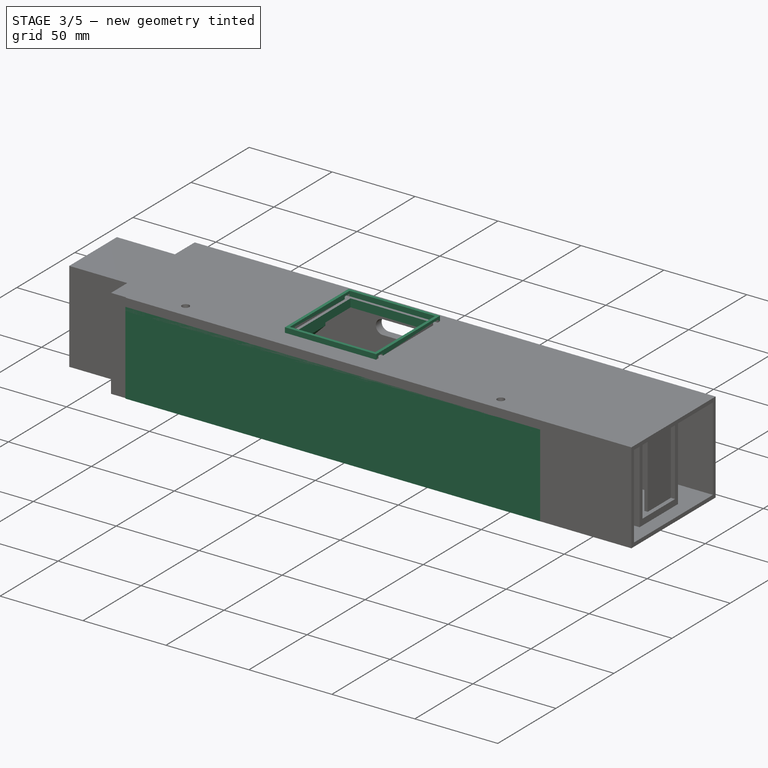
[diagram: stage 3 of 5 — iso view after this stage's code; geometry added in this stage tinted green]
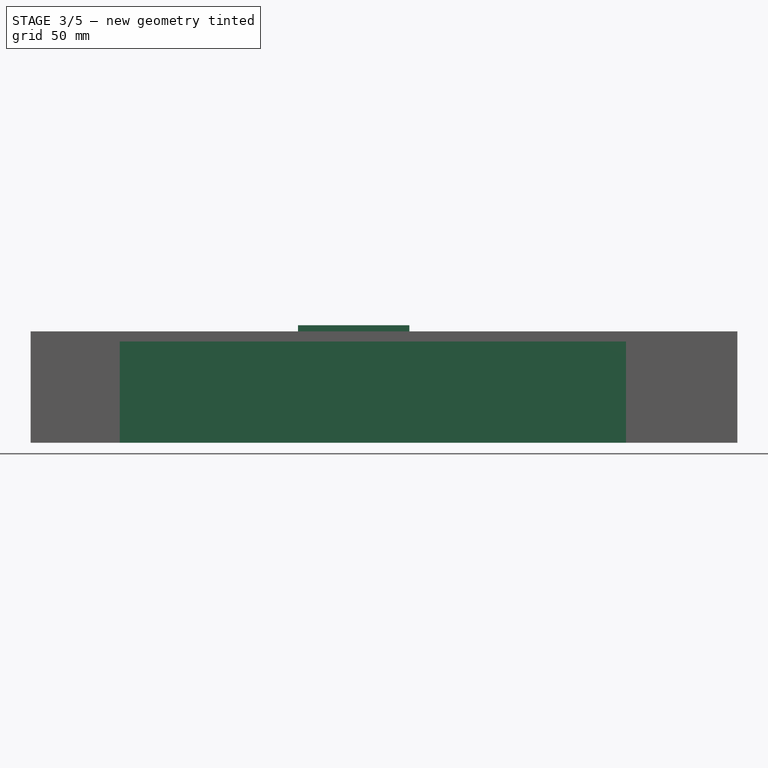
[diagram: stage 3 of 5 — front view after this stage's code; geometry added in this stage tinted green]
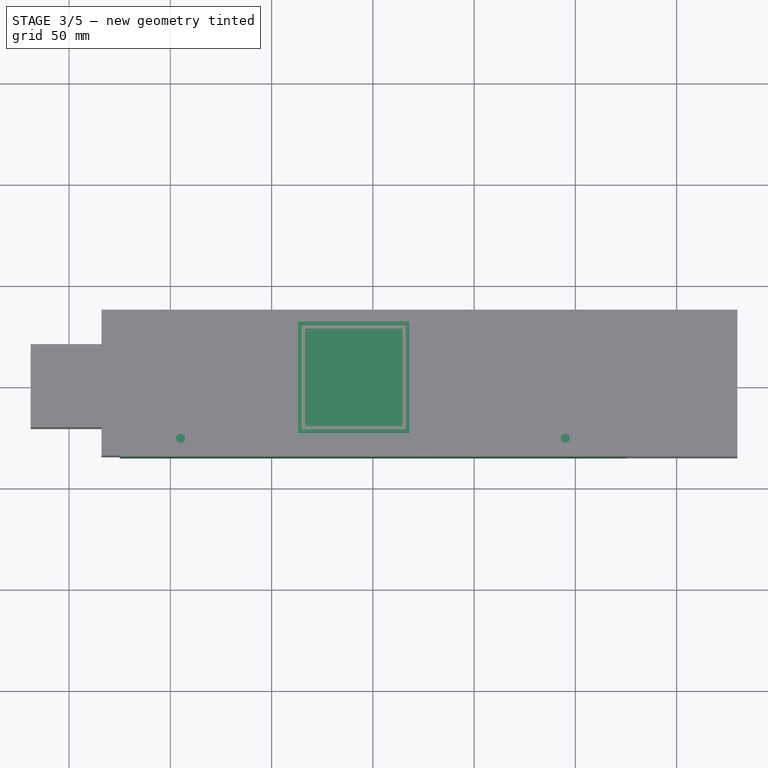
[diagram: stage 3 of 5 — top view after this stage's code; geometry added in this stage tinted green]
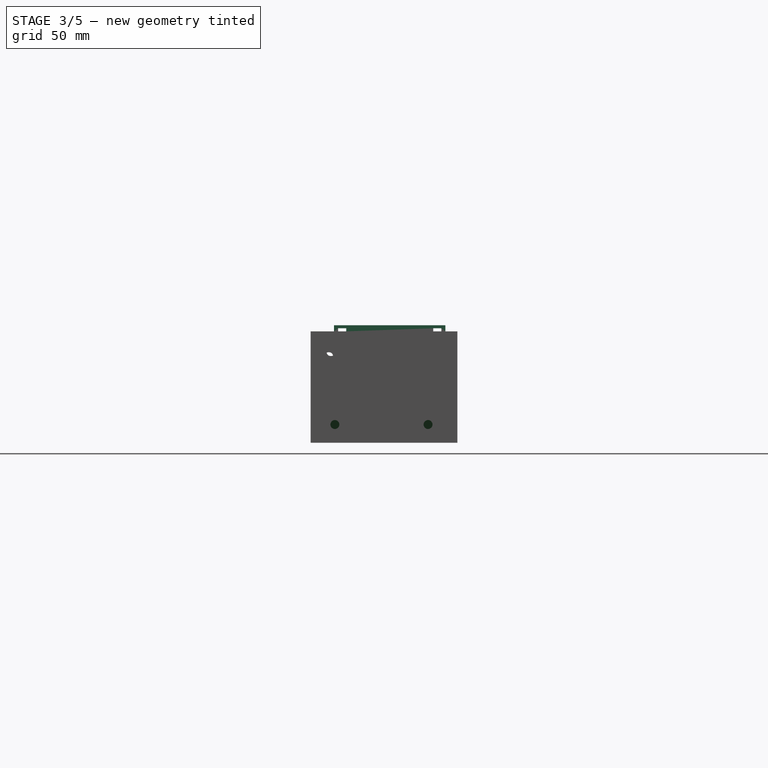
[diagram: stage 3 of 5 — right view after this stage's code; geometry added in this stage tinted green]
FEATURE [App::VRMLObject] multi_smtpa_linear  label="multi-smtpa_linear"
  Placement = pos=(-147.261,77.5819,40.7254) rot=(0,0,1;0rad)
FEATURE [Sketcher::SketchObject] CopySketch
  sketch-geometry (4):
    g0: LineSegment StartX=-125 StartY=35 StartZ=0 EndX=125 EndY=35 EndZ=0
    g1: LineSegment StartX=125 StartY=35 StartZ=0 EndX=125 EndY=-35 EndZ=0
    g2: LineSegment StartX=125 StartY=-35 StartZ=0 EndX=-125 EndY=-35 EndZ=0
    g3: LineSegment StartX=-125 StartY=-35 StartZ=0 EndX=-125 EndY=35 EndZ=0
  constraints (10):
    c: Horizontal(g0)
    c: Vertical(g1)
    c: DistanceX(g3,g1) = 250
    c: Symmetric(g3,g1,g-2)
    c: Symmetric(g0,g3,g-1)
    c: Coincident(g2,g3)
    c: Coincident(g1,g2)
    c: Coincident(g3,g0)
    c: Coincident(g1,g0)
    c: DistanceY(g1,g1) = 70
FEATURE [Raytracing::RayFeature] Body001_View
  Result = <blob: 25648 chars omitted>
  Transparency = 0
FEATURE [Raytracing::RayFeature] Body002_View
  Result = <blob: 18890 chars omitted>
  Transparency = 0
FEATURE [Raytracing::RayFeature] Body003_View
  Result = <blob: 23214 chars omitted>
  Transparency = 0
FEATURE [Part::Feature] Part__Feature  label="˟°1"
  Placement = pos=(-104.545,8.03953e-07,27.6303) rot=(0,1,0;1.5708rad)
  shape: bbox 28.2 x 41.27 x 41.27 mm, 170 faces (baked)
FEATURE [App::Part] _0X28P3_FRAME_HOOK  label="fan"
  Group = -> [Part__Feature]
  Origin = -> Origin004
FEATURE [PartDesign::Pad] Pad  label="base"
  Length = 5
  Length2 = 100
  Profile = -> CopySketch
  Type = 0
FEATURE [Sketcher::SketchObject] Sketch001
  ExternalGeometry = -> [Pad]
  MapMode = 5
  Placement = pos=(0,0,5) rot=(0,0,1;0rad)
  Support = -> [Pad]
  sketch-geometry (4):
    g0: LineSegment StartX=-125 StartY=-35 StartZ=0 EndX=125 EndY=-35 EndZ=0
    g1: LineSegment StartX=125 StartY=-35 StartZ=0 EndX=125 EndY=-30 EndZ=0
    g2: LineSegment StartX=125 StartY=-30 StartZ=0 EndX=-125 EndY=-30 EndZ=0
    g3: LineSegment StartX=-125 StartY=-30 StartZ=0 EndX=-125 EndY=-35 EndZ=0
  constraints (11):
    c: Coincident(g0,g1)
    c: Coincident(g1,g2)
    c: Coincident(g2,g3)
    c: Coincident(g3,g0)
    c: Horizontal(g0)
    c: Horizontal(g2)
    c: Vertical(g1)
    c: Vertical(g3)
    c: Coincident(g0,g-4)
    c: PointOnObject(g1,g-5)
    c: DistanceY(g3,g3) = 5
FEATURE [PartDesign::Pad] Pad003  label="side_wall"
  BaseFeature = -> Pad
  Length = 45
  Length2 = 100
  Profile = -> Sketch001
  Type = 0
FEATURE [Sketcher::SketchObject] Sketch
  MapMode = 5
  Support = -> [XY_Plane]
  sketch-geometry (4):
    g0: LineSegment StartX=-125 StartY=37.5 StartZ=0 EndX=125 EndY=37.5 EndZ=0
    g1: LineSegment StartX=125 StartY=37.5 StartZ=0 EndX=125 EndY=32.5 EndZ=0
    g2: LineSegment StartX=125 StartY=32.5 StartZ=0 EndX=-125 EndY=32.5 EndZ=0
    g3: LineSegment StartX=-125 StartY=32.5 StartZ=0 EndX=-125 EndY=37.5 EndZ=0
  constraints (11):
    c: Coincident(g0,g1)
    c: Coincident(g1,g2)
    c: Coincident(g2,g3)
    c: Coincident(g3,g0)
    c: Horizontal(g0)
    c: Vertical(g1)
    c: Vertical(g3)
    c: DistanceY(g1,g1) = 5
    c: DistanceY(g-1,g0) = 37.5
    c: DistanceX(g2,g-1) = 125
    c: Symmetric(g2,g1,g-2)
FEATURE [Sketcher::SketchObject] Sketch002
  MapMode = 5
  Placement = pos=(0,-30,0) rot=(0,0.707107,0.707107;3.14159rad)
  Support = -> [Pad003]
  sketch-geometry (4):
    g0: LineSegment StartX=50 StartY=40 StartZ=0 EndX=50 EndY=35 EndZ=0
    g1: LineSegment StartX=50 StartY=35 StartZ=0 EndX=80 EndY=5 EndZ=0
    g2: LineSegment StartX=80 StartY=5 StartZ=0 EndX=85 EndY=5 EndZ=0
    g3: LineSegment StartX=85 StartY=5 StartZ=0 EndX=50 EndY=40 EndZ=0
  constraints (12):
    c: Vertical(g0)
    c: Coincident(g0,g1)
    c: Coincident(g1,g2)
    c: Horizontal(g2)
    c: Coincident(g2,g3)
    c: Coincident(g3,g0)
    c: Equal(g2,g0)
    c: DistanceY(g-1,g1) = 5
    c: Angle(g3,g-1) = 0.785398
    c: DistanceY(g0,g0) = 5
    c: DistanceX(g-1,g1) = 80
    c: DistanceX(g-1,g0) = 50
FEATURE [PartDesign::Pad] Pad004  label="air_guide"
  BaseFeature = -> Pad003
  Length = 60
  Length2 = 100
  Profile = -> Sketch002
  Type = 0
FEATURE [Sketcher::SketchObject] Sketch030
  MapMode = 5
  Placement = pos=(0,1.21e-14,55) rot=(0,0,1;0rad)
  Support = -> [Pocket009]
  sketch-geometry (4):
    g0: LineSegment StartX=14.55 StartY=-19.91 StartZ=0 EndX=-33.45 EndY=-19.91 EndZ=0
    g1: LineSegment StartX=-33.45 StartY=-19.91 StartZ=0 EndX=-33.45 EndY=28.09 EndZ=0
    g2: LineSegment StartX=-33.45 StartY=28.09 StartZ=0 EndX=14.55 EndY=28.09 EndZ=0
    g3: LineSegment StartX=14.55 StartY=28.09 StartZ=0 EndX=14.55 EndY=-19.91 EndZ=0
  constraints (12):
    c: Coincident(g0,g1)
    c: Coincident(g1,g2)
    c: Coincident(g2,g3)
    c: Coincident(g3,g0)
    c: Horizontal(g0)
    c: Horizontal(g2)
    c: Vertical(g1)
    c: Vertical(g3)
    c: Equal(g2,g3)
    c: DistanceY(g3,g3) = 48
    c: DistanceX(g-1,g0) = 14.55
    c: DistanceY(g0,g-1) = 19.91
FEATURE [PartDesign::Pocket] Pocket010
  BaseFeature = -> Pocket009
  Length = 5
  Length2 = 100
  Profile = -> Sketch030
  Type = 2
FEATURE [Sketcher::SketchObject] Sketch031
  ExternalGeometry = -> [Pocket010]
  MapMode = 5
  Placement = pos=(0,1.21e-14,55) rot=(0,0,1;0rad)
  Support = -> [Pocket010]
  sketch-geometry (9):
    g0: LineSegment StartX=16.3 StartY=-21.66 StartZ=0 EndX=-35.2 EndY=-21.66 EndZ=0
    g1: LineSegment StartX=-35.2 StartY=-21.66 StartZ=0 EndX=-35.2 EndY=29.84 EndZ=0
    g2: LineSegment StartX=-35.2 StartY=29.84 StartZ=0 EndX=16.3 EndY=29.84 EndZ=0
    g3: LineSegment StartX=16.3 StartY=29.84 StartZ=0 EndX=16.3 EndY=-21.66 EndZ=0
    g4: GeomPoint X=-9.45 Y=4.09 Z=0
    g5: LineSegment StartX=-36.95 StartY=31.59 StartZ=0 EndX=18.05 EndY=31.59 EndZ=0
    g6: LineSegment StartX=18.05 StartY=31.59 StartZ=0 EndX=18.05 EndY=-23.41 EndZ=0
    g7: LineSegment StartX=18.05 StartY=-23.41 StartZ=0 EndX=-36.95 EndY=-23.41 EndZ=0
    g8: LineSegment StartX=-36.95 StartY=-23.41 StartZ=0 EndX=-36.95 EndY=31.59 EndZ=0
  constraints (23):
    c: Coincident(g0,g1)
    c: Coincident(g1,g2)
    c: Coincident(g2,g3)
    c: Coincident(g3,g0)
    c: Horizontal(g0)
    c: Horizontal(g2)
    c: Vertical(g1)
    c: Vertical(g3)
    c: Equal(g2,g3)
    c: DistanceY(g3,g3) = 51.5
    c: Symmetric(g1,g0,g4)
    c: Symmetric(g-3,g-4,g4)
    c: Coincident(g5,g6)
    c: Coincident(g6,g7)
    c: Coincident(g7,g8)
    c: Coincident(g8,g5)
    c: Horizontal(g5)
    c: Horizontal(g7)
    c: Vertical(g6)
    c: Vertical(g8)
    c: Symmetric(g6,g5,g4)
    c: Equal(g5,g8)
    c: DistanceX(g5,g5) = 55
FEATURE [PartDesign::Pad] Pad015
  BaseFeature = -> Pocket010
  Length = 3
  Length2 = 100
  Profile = -> Sketch031
  Type = 0
FEATURE [Sketcher::SketchObject] Sketch032
  ExternalGeometry = -> [Pad015]
  MapMode = 5
  Placement = pos=(-36.95,0,0) rot=(0.57735,-0.57735,-0.57735;2.0944rad)
  Support = -> [Pad015]
  sketch-geometry (10):
    g0: LineSegment StartX=-29.59 StartY=55 StartZ=0 EndX=-25.59 EndY=55 EndZ=0
    g1: LineSegment StartX=-25.59 StartY=55 StartZ=0 EndX=-25.59 EndY=56.5 EndZ=0
    g2: LineSegment StartX=-25.59 StartY=56.5 StartZ=0 EndX=-29.59 EndY=56.5 EndZ=0
    g3: LineSegment StartX=-29.59 StartY=56.5 StartZ=0 EndX=-29.59 EndY=55 EndZ=0
    g4: LineSegment StartX=21.41 StartY=55 StartZ=0 EndX=17.41 EndY=55 EndZ=0
    g5: LineSegment StartX=17.41 StartY=55 StartZ=0 EndX=17.41 EndY=56.5 EndZ=0
    g6: LineSegment StartX=17.41 StartY=56.5 StartZ=0 EndX=21.41 EndY=56.5 EndZ=0
    g7: LineSegment StartX=21.41 StartY=56.5 StartZ=0 EndX=21.41 EndY=55 EndZ=0
    g8: LineSegment [constr] StartX=-29.59 StartY=55 StartZ=0 EndX=-31.59 EndY=55 EndZ=0
    g9: LineSegment [constr] StartX=23.41 StartY=55 StartZ=0 EndX=21.41 EndY=55 EndZ=0
  constraints (28):
    c: Coincident(g0,g1)
    c: Coincident(g1,g2)
    c: Coincident(g2,g3)
    c: Coincident(g3,g0)
    c: Horizontal(g0)
    c: Horizontal(g2)
    c: Vertical(g1)
    c: Vertical(g3)
    c: PointOnObject(g0,g-4)
    c: Coincident(g4,g5)
    c: Coincident(g5,g6)
    c: Coincident(g6,g7)
    c: Coincident(g7,g4)
    c: Horizontal(g4)
    c: Horizontal(g6)
    c: Vertical(g5)
    c: Vertical(g7)
    c: PointOnObject(g4,g-4)
    c: Equal(g6,g2)
    c: Equal(g1,g5)
    c: Coincident(g8,g0)
    c: Coincident(g8,g-4)
    c: Coincident(g9,g-4)
    c: Coincident(g9,g4)
    c: Equal(g9,g8)
    c: DistanceY(g1,g1) = 1.5
    c: DistanceX(g2,g2) = 4
    c: DistanceX(g8,g8) = 2
FEATURE [PartDesign::Pocket] Pocket011
  BaseFeature = -> Pad015
  Length = 5
  Length2 = 100
  Profile = -> Sketch032
  Type = 1
FEATURE [Sketcher::SketchObject] Sketch033
  ExternalGeometry = -> [Pocket011]
  MapMode = 5
  Placement = pos=(125,0,0) rot=(0.57735,0.57735,0.57735;2.0944rad)
  Support = -> [Pocket011]
  sketch-geometry (14):
    g0: LineSegment StartX=-32.6 StartY=47.7 StartZ=0 EndX=-35 EndY=47.7 EndZ=0
    g1: LineSegment StartX=-35 StartY=47.7 StartZ=0 EndX=-35 EndY=55 EndZ=0
    g2: LineSegment StartX=-35 StartY=55 StartZ=0 EndX=37.5 EndY=55 EndZ=0
    g3: LineSegment StartX=37.5 StartY=55 StartZ=0 EndX=37.5 EndY=0 EndZ=0
    g4: LineSegment StartX=37.5 StartY=0 StartZ=0 EndX=32.5 EndY=0 EndZ=0
    g5: LineSegment StartX=32.5 StartY=0 StartZ=0 EndX=32.5 EndY=2.5 EndZ=0
    g6: LineSegment StartX=32.5 StartY=2.5 StartZ=0 EndX=35 EndY=2.5 EndZ=0
    g7: LineSegment StartX=35 StartY=2.5 StartZ=0 EndX=35 EndY=52.55 EndZ=0
    g8: LineSegment StartX=35 StartY=52.55 StartZ=0 EndX=-32.6 EndY=52.55 EndZ=0
    g9: LineSegment StartX=-32.6 StartY=52.55 StartZ=0 EndX=-32.6 EndY=47.7 EndZ=0
    g10: LineSegment [constr] StartX=32.5 StartY=5.1 StartZ=0 EndX=35 EndY=5.1 EndZ=0
    g11: LineSegment [constr] StartX=37.5 StartY=5.1 StartZ=0 EndX=35 EndY=5.1 EndZ=0
    g12: LineSegment [constr] StartX=32.5 StartY=50.1 StartZ=0 EndX=32.5 EndY=52.55 EndZ=0
    g13: LineSegment [constr] StartX=32.5 StartY=55 StartZ=0 EndX=32.5 EndY=52.55 EndZ=0
  constraints (36):
    c: Coincident(g-4,g0)
    c: Coincident(g0,g-4)
    c: Coincident(g0,g1)
    c: Coincident(g1,g-3)
    c: Coincident(g1,g2)
    c: Coincident(g2,g-5)
    c: Coincident(g2,g3)
    c: Coincident(g3,g-5)
    c: Coincident(g3,g4)
    c: PointOnObject(g4,g-1)
    c: Coincident(g4,g5)
    c: Vertical(g5)
    c: Coincident(g5,g6)
    c: Horizontal(g6)
    c: Coincident(g6,g7)
    c: Vertical(g7)
    c: Coincident(g7,g8)
    c: Horizontal(g8)
    c: Coincident(g8,g9)
    c: Coincident(g9,g0)
    c: Vertical(g9)
    c: Coincident(g10,g-6)
    c: PointOnObject(g10,g7)
    c: Horizontal(g10)
    c: PointOnObject(g11,g3)
    c: Coincident(g11,g10)
    c: Horizontal(g11)
    c: Equal(g11,g10)
    c: Coincident(g12,g-6)
    c: PointOnObject(g12,g8)
    c: Vertical(g12)
    c: PointOnObject(g13,g2)
    c: Coincident(g13,g12)
    c: Vertical(g13)
    c: Equal(g12,g13)
    c: Coincident(g5,g-7)
FEATURE [PartDesign::Pocket] Pocket012
  BaseFeature = -> Pocket011
  Length = 5
  Length2 = 100
  Profile = -> Sketch033
  Type = 0
FEATURE [Sketcher::SketchObject] Sketch035
  ExternalGeometry = -> [Pocket012]
  MapMode = 5
  Placement = pos=(0,0,5.1) rot=(1,0,0;3.14159rad)
  Support = -> [Pocket012]
  sketch-geometry (4):
    g0: LineSegment StartX=120 StartY=-35 StartZ=0 EndX=125 EndY=-35 EndZ=0
    g1: LineSegment StartX=125 StartY=-35 StartZ=0 EndX=125 EndY=-32.5 EndZ=0
    g2: LineSegment StartX=125 StartY=-32.5 StartZ=0 EndX=120 EndY=-32.5 EndZ=0
    g3: LineSegment StartX=120 StartY=-32.5 StartZ=0 EndX=120 EndY=-35 EndZ=0
  constraints (10):
    c: Coincident(g0,g1)
    c: Coincident(g1,g2)
    c: Coincident(g2,g3)
    c: Coincident(g3,g0)
    c: Horizontal(g0)
    c: Horizontal(g2)
    c: Vertical(g1)
    c: Vertical(g3)
    c: Coincident(g0,g-4)
    c: Coincident(g1,g-3)
FEATURE [PartDesign::Pad] Pad016
  BaseFeature = -> Pocket012
  Length = 2.6
  Length2 = 100
  Profile = -> Sketch035
  Type = 0
FEATURE [Sketcher::SketchObject] Sketch036
  ExternalGeometry = -> [Pad016]
  MapMode = 5
  Placement = pos=(0,1.1e-14,50.1) rot=(1,0,0;3.14159rad)
  Support = -> [Pad016]
  sketch-geometry (4):
    g0: LineSegment StartX=120 StartY=32.6 StartZ=0 EndX=125 EndY=32.6 EndZ=0
    g1: LineSegment StartX=125 StartY=32.6 StartZ=0 EndX=125 EndY=30 EndZ=0
    g2: LineSegment StartX=125 StartY=30 StartZ=0 EndX=120 EndY=30 EndZ=0
    g3: LineSegment StartX=120 StartY=30 StartZ=0 EndX=120 EndY=32.6 EndZ=0
  constraints (11):
    c: Coincident(g0,g1)
    c: Coincident(g1,g2)
    c: Coincident(g2,g3)
    c: Coincident(g3,g0)
    c: Horizontal(g0)
    c: Horizontal(g2)
    c: Vertical(g1)
    c: Vertical(g3)
    c: Coincident(g0,g-3)
    c: PointOnObject(g1,g-4)
    c: DistanceY(g3,g3) = 2.6
FEATURE [PartDesign::Pad] Pad017
  BaseFeature = -> Pad016
  Length = 2.4
  Length2 = 100
  Profile = -> Sketch036
  Type = 0
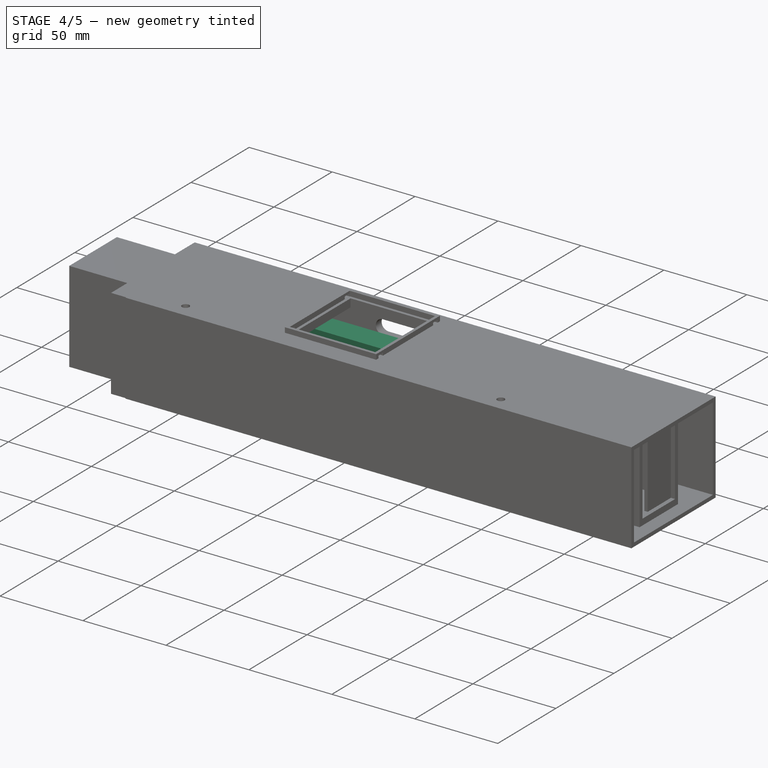
[diagram: stage 4 of 5 — iso view after this stage's code; geometry added in this stage tinted green]
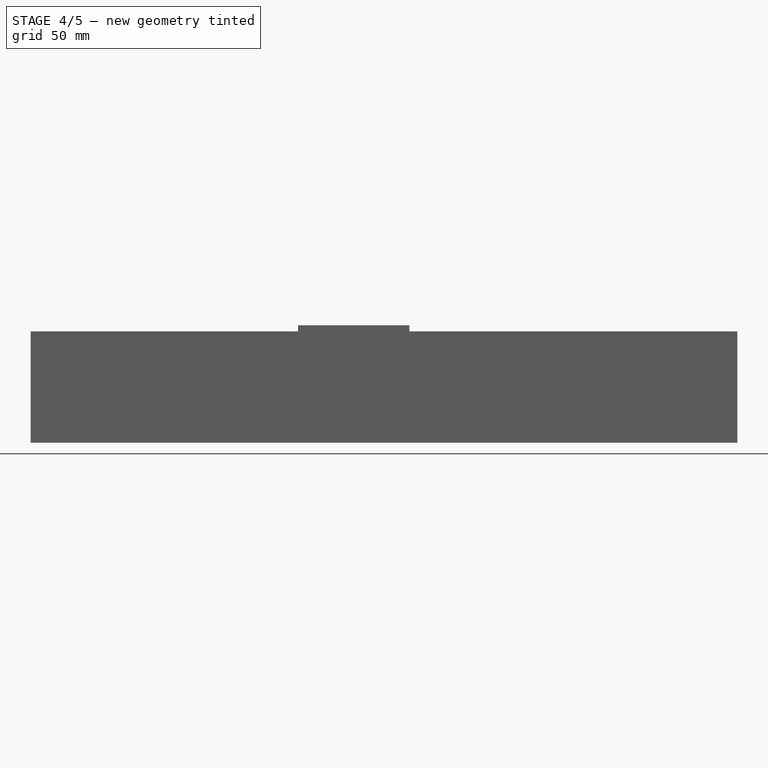
[diagram: stage 4 of 5 — front view after this stage's code; geometry added in this stage tinted green]
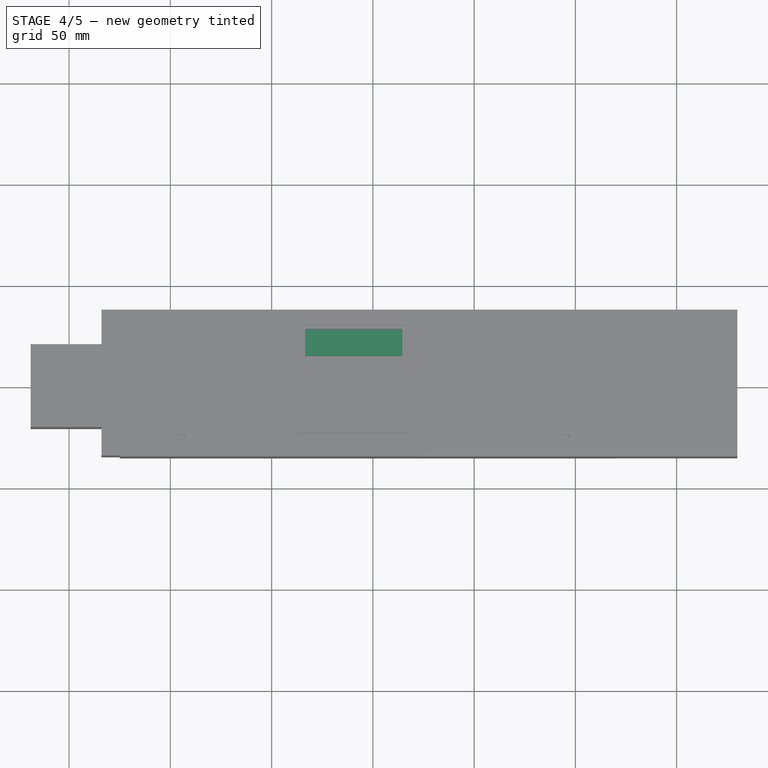
[diagram: stage 4 of 5 — top view after this stage's code; geometry added in this stage tinted green]
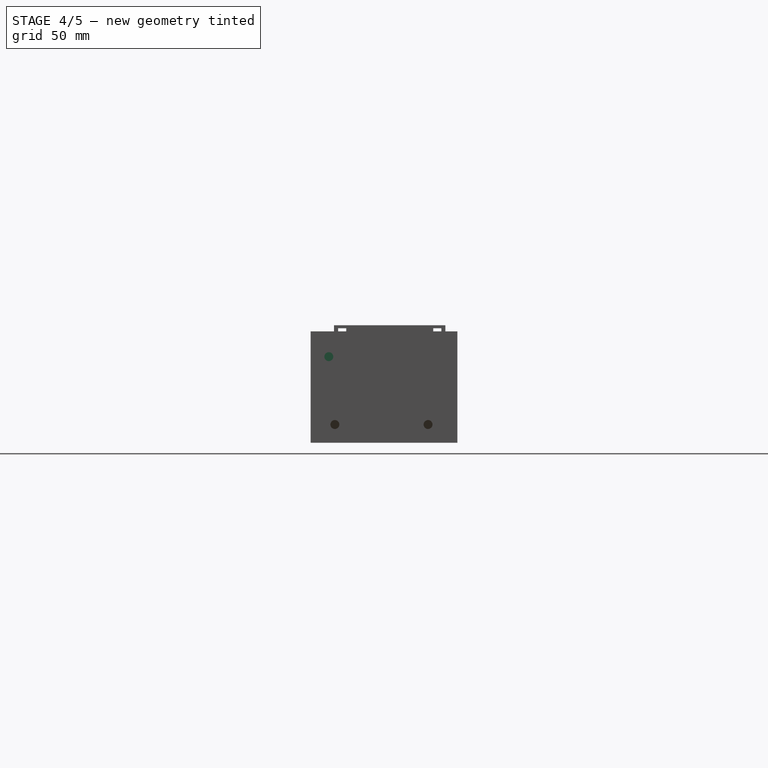
[diagram: stage 4 of 5 — right view after this stage's code; geometry added in this stage tinted green]
FEATURE [Sketcher::SketchObject] Sketch005  label="fan_mount"
  MapMode = 5
  Placement = pos=(0,0,5) rot=(0,0,1;0rad)
  sketch-geometry (4):
    g0: LineSegment StartX=-125 StartY=35 StartZ=0 EndX=-120 EndY=35 EndZ=0
    g1: LineSegment StartX=-120 StartY=35 StartZ=0 EndX=-120 EndY=-30 EndZ=0
    g2: LineSegment StartX=-120 StartY=-30 StartZ=0 EndX=-125 EndY=-30 EndZ=0
    g3: LineSegment StartX=-125 StartY=-30 StartZ=0 EndX=-125 EndY=35 EndZ=0
  constraints (9):
    c: Coincident(g0,g1)
    c: Coincident(g1,g2)
    c: Coincident(g2,g3)
    c: Coincident(g3,g0)
    c: Horizontal(g0)
    c: Horizontal(g2)
    c: Vertical(g1)
    c: Vertical(g3)
    c: DistanceX(g0,g0) = 5
FEATURE [PartDesign::Pad] Pad006  label="fan_bracket"
  BaseFeature = -> Pad004
  Length = 45
  Length2 = 100
  Profile = -> Sketch005
  Type = 0
FEATURE [Sketcher::SketchObject] Sketch006
  ExternalGeometry = -> [Pad006]
  MapMode = 5
  Placement = pos=(-125,0,0) rot=(0.57735,-0.57735,-0.57735;2.0944rad)
  Support = -> [Pad006]
  sketch-geometry (2):
    g0: LineSegment [constr] StartX=30 StartY=27.5 StartZ=0 EndX=-35 EndY=27.5 EndZ=0
    g1: Circle CenterX=0 CenterY=27.5 CenterZ=0 NormalX=0 NormalY=0 NormalZ=1 AngleXU=0 Radius=18
  constraints (6):
    c: Symmetric(g-3,g-3,g0)
    c: PointOnObject(g0,g-3)
    c: Equal(g0,g-4)
    c: PointOnObject(g1,g-2)
    c: PointOnObject(g1,g0)
    c: Radius(g1) = 18
FEATURE [PartDesign::Pocket] Pocket  label="guard_centre"
  BaseFeature = -> Pad006
  Length = 5
  Length2 = 100
  Profile = -> Sketch006
  Type = 2
FEATURE [Sketcher::SketchObject] Sketch007
  ExternalGeometry = -> [Pad004]
  MapMode = 5
  Placement = pos=(-50,0,0) rot=(0.57735,0.57735,0.57735;2.0944rad)
  Support = -> [Pad004]
  sketch-geometry (4):
    g0: LineSegment StartX=-30 StartY=40 StartZ=0 EndX=30 EndY=40 EndZ=0
    g1: LineSegment StartX=30 StartY=40 StartZ=0 EndX=30 EndY=35 EndZ=0
    g2: LineSegment StartX=30 StartY=35 StartZ=0 EndX=-30 EndY=35 EndZ=0
    g3: LineSegment StartX=-30 StartY=35 StartZ=0 EndX=-30 EndY=40 EndZ=0
  constraints (10):
    c: Coincident(g0,g1)
    c: Coincident(g1,g2)
    c: Coincident(g2,g3)
    c: Coincident(g3,g0)
    c: Horizontal(g0)
    c: Horizontal(g2)
    c: Vertical(g1)
    c: Vertical(g3)
    c: Coincident(g0,g-6)
    c: Coincident(g1,g-4)
FEATURE [PartDesign::Pad] Pad007  label="mount_plate_10gig"
  BaseFeature = -> Pocket
  Length = 105
  Length2 = 100
  Profile = -> Sketch007
  Type = 0
FEATURE [Sketcher::SketchObject] Sketch008
  MapMode = 5
  Placement = pos=(-50,0,0) rot=(0.57735,0.57735,0.57735;2.0944rad)
  Support = -> [Pad006]
  sketch-geometry (1):
    g0: Circle CenterX=0 CenterY=30 CenterZ=0 NormalX=0 NormalY=0 NormalZ=1 AngleXU=0 Radius=5
  constraints (3):
    c: PointOnObject(g0,g-2)
    c: Diameter(g0) = 10
    c: DistanceY(g-1,g0) = 30
FEATURE [PartDesign::Pocket] Pocket001  label="cool_hole_thermoamp"
  BaseFeature = -> Pad007
  Length = 0
  Length2 = 100
  Profile = -> Sketch008
  Type = 3
  UpToFace = -> Pad007 [Face13]
FEATURE [Sketcher::SketchObject] Sketch009
  ExternalGeometry = -> [Pad007]
  MapMode = 5
  Placement = pos=(0,0,35) rot=(1,0,0;3.14159rad)
  Support = -> [Pad007]
  sketch-geometry (8):
    g0: LineSegment StartX=45 StartY=15 StartZ=0 EndX=15 EndY=-15 EndZ=0
    g1: LineSegment StartX=15 StartY=-15 StartZ=0 EndX=-35 EndY=-15 EndZ=0
    g2: LineSegment StartX=-35 StartY=-15 StartZ=0 EndX=-50 EndY=-15 EndZ=0
    g3: LineSegment StartX=-50 StartY=-15 StartZ=0 EndX=-50 EndY=15 EndZ=0
    g4: LineSegment StartX=-50 StartY=15 StartZ=0 EndX=-35 EndY=15 EndZ=0
    g5: LineSegment StartX=-35 StartY=15 StartZ=0 EndX=-35 EndY=30 EndZ=0
    g6: LineSegment StartX=30 StartY=30 StartZ=0 EndX=45 EndY=15 EndZ=0
    g7: LineSegment StartX=-35 StartY=30 StartZ=0 EndX=30 EndY=30 EndZ=0
  constraints (23):
    c: Coincident(g0,g1)
    c: Horizontal(g2)
    c: Coincident(g2,g3)
    c: Coincident(g3,g4)
    c: Horizontal(g4)
    c: Coincident(g4,g5)
    c: Vertical(g5)
    c: Angle(g-4,g6) = 2.35619
    c: Equal(g4,g2)
    c: PointOnObject(g3,g-6)
    c: DistanceY(g5,g5) = 15
    c: DistanceX(g2,g2) = 15
    c: Angle(g0,g1) = 2.35619
    c: Horizontal(g1)
    c: DistanceX(g6,g-4) = 10
    c: Coincident(g1,g2)
    c: Symmetric(g2,g3,g-1)
    c: PointOnObject(g5,g-4)
    c: PointOnObject(g6,g-4)
    c: Coincident(g7,g5)
    c: Coincident(g7,g6)
    c: Coincident(g0,g6)
    c: DistanceX(g-6,g0) = 65
FEATURE [PartDesign::Pocket] Pocket002  label="access_hole"
  BaseFeature = -> Pocket001
  Length = 5
  Length2 = 100
  Profile = -> Sketch009
  Type = 2
FEATURE [Sketcher::SketchObject] Sketch010
  MapMode = 5
  Placement = pos=(0,0,35) rot=(1,0,0;3.14159rad)
  Support = -> [Pocket002]
  sketch-geometry (1):
    g0: Circle CenterX=25 CenterY=-23 CenterZ=0 NormalX=0 NormalY=0 NormalZ=1 AngleXU=0 Radius=4
  constraints (3):
    c: Diameter(g0) = 8
    c: DistanceX(g-1,g0) = 25
    c: DistanceY(g0,g-1) = 23
FEATURE [PartDesign::Pocket] Pocket003  label="access_hole_2"
  BaseFeature = -> Pocket002
  Length = 5
  Length2 = 100
  Profile = -> Sketch010
  Type = 2
FEATURE [Sketcher::SketchObject] Sketch011
  ExternalGeometry = -> [Pocket003]
  MapMode = 5
  Placement = pos=(125,0,0) rot=(0.57735,0.57735,0.57735;2.0944rad)
  Support = -> [Pocket003]
  sketch-geometry (10):
    g0: LineSegment StartX=32.5 StartY=2.5 StartZ=0 EndX=-32.5 EndY=2.5 EndZ=0
    g1: LineSegment StartX=-32.5 StartY=2.5 StartZ=0 EndX=-32.5 EndY=47.5 EndZ=0
    g2: LineSegment StartX=-35 StartY=50 StartZ=0 EndX=-35 EndY=0 EndZ=0
    g3: LineSegment StartX=35 StartY=0 StartZ=0 EndX=-35 EndY=0 EndZ=0
    g4: LineSegment StartX=-35 StartY=50 StartZ=0 EndX=-30 EndY=50 EndZ=0
    g5: LineSegment StartX=-30 StartY=50 StartZ=0 EndX=-30 EndY=47.5 EndZ=0
    g6: LineSegment StartX=-30 StartY=47.5 StartZ=0 EndX=-32.5 EndY=47.5 EndZ=0
    g7: LineSegment StartX=32.5 StartY=2.5 StartZ=0 EndX=32.5 EndY=5 EndZ=0
    g8: LineSegment StartX=32.5 StartY=5 StartZ=0 EndX=35 EndY=5 EndZ=0
    g9: LineSegment StartX=35 StartY=5 StartZ=0 EndX=35 EndY=0 EndZ=0
  constraints (26):
    c: PointOnObject(g2,g-1)
    c: Horizontal(g0)
    c: Coincident(g0,g1)
    c: Vertical(g1)
    c: Vertical(g2)
    c: Coincident(g3,g2)
    c: DistanceY(g0,g-6) = 2.5
    c: DistanceX(g1,g-3) = 2.5
    c: Coincident(g3,g-6)
    c: Coincident(g2,g-4)
    c: Coincident(g2,g4)
    c: Coincident(g4,g-3)
    c: Coincident(g4,g5)
    c: PointOnObject(g5,g-3)
    c: Coincident(g5,g6)
    c: Coincident(g6,g1)
    c: Horizontal(g6)
    c: DistanceY(g5,g5) = 2.5
    c: Coincident(g0,g7)
    c: PointOnObject(g7,g-5)
    c: Vertical(g7)
    c: Coincident(g7,g8)
    c: Coincident(g8,g-6)
    c: Coincident(g8,g9)
    c: Coincident(g9,g3)
    c: DistanceX(g8,g8) = 2.5
FEATURE [PartDesign::Pocket] Pocket004  label="lightlip1"
  BaseFeature = -> Pocket003
  Length = 5
  Length2 = 100
  Profile = -> Sketch011
  Type = 0
FEATURE [Sketcher::SketchObject] Sketch012
  MapMode = 5
  Placement = pos=(0,-30,0) rot=(0,0.707107,0.707107;3.14159rad)
  Support = -> [Pocket004]
  sketch-geometry (9):
    g0: LineSegment StartX=-20 StartY=15 StartZ=0 EndX=-30 EndY=15 EndZ=0
    g1: LineSegment StartX=-30 StartY=15 StartZ=0 EndX=-30 EndY=12 EndZ=0
    g2: LineSegment StartX=-30 StartY=12 StartZ=0 EndX=-20 EndY=12 EndZ=0
    g3: LineSegment StartX=-20 StartY=12 StartZ=0 EndX=-20 EndY=15 EndZ=0
    g4: LineSegment StartX=-110.5 StartY=15 StartZ=0 EndX=-120.5 EndY=15 EndZ=0
    g5: LineSegment StartX=-120.5 StartY=15 StartZ=0 EndX=-120.5 EndY=12 EndZ=0
    g6: LineSegment StartX=-120.5 StartY=12 StartZ=0 EndX=-110.5 EndY=12 EndZ=0
    g7: LineSegment StartX=-110.5 StartY=12 StartZ=0 EndX=-110.5 EndY=15 EndZ=0
    g8: LineSegment [constr] StartX=-110.5 StartY=12 StartZ=0 EndX=-30 EndY=12 EndZ=0
  constraints (26):
    c: Coincident(g0,g1)
    c: Coincident(g1,g2)
    c: Coincident(g2,g3)
    c: Coincident(g3,g0)
    c: Horizontal(g0)
    c: Horizontal(g2)
    c: Vertical(g1)
    c: Vertical(g3)
    c: Coincident(g4,g5)
    c: Coincident(g5,g6)
    c: Coincident(g6,g7)
    c: Coincident(g7,g4)
    c: Horizontal(g4)
    c: Horizontal(g6)
    c: Vertical(g5)
    c: Vertical(g7)
    c: DistanceX(g0,g0) = 10
    c: DistanceY(g3,g3) = 3
    c: DistanceX(g4,g4) = 10
    c: DistanceY(g5,g5) = 3
    c: Coincident(g8,g6)
    c: Coincident(g8,g1)
    c: Horizontal(g8)
    c: DistanceX(g8,g8) = 80.5
    c: DistanceX(g1,g-1) = 30
    c: DistanceY(g-1,g2) = 12
FEATURE [PartDesign::Pad] Pad008  label="tamp_board_mount"
  BaseFeature = -> Pocket004
  Length = 60
  Length2 = 100
  Profile = -> Sketch012
  Type = 0
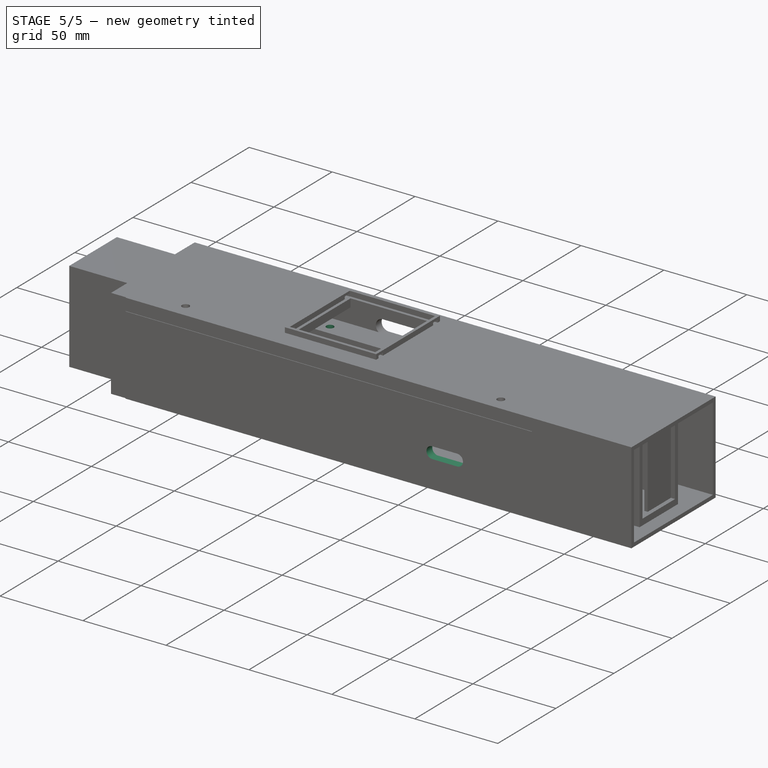
[diagram: stage 5 of 5 — iso view after this stage's code; geometry added in this stage tinted green]
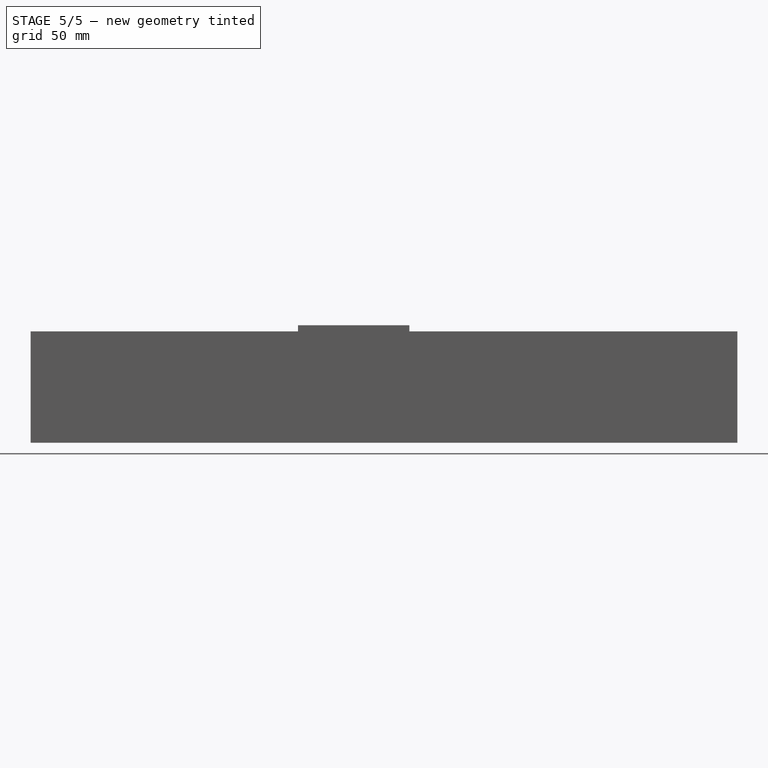
[diagram: stage 5 of 5 — front view after this stage's code; geometry added in this stage tinted green]
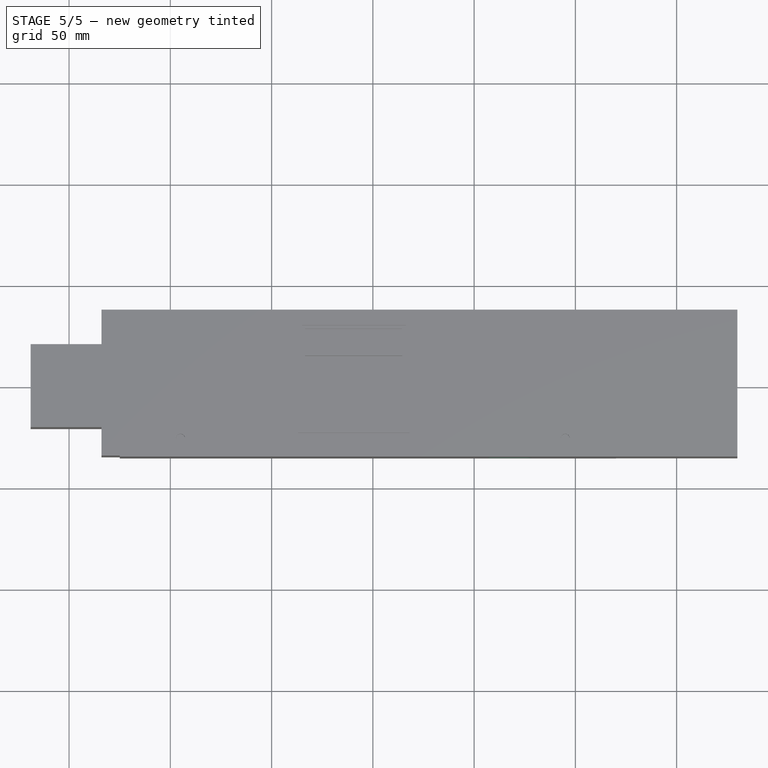
[diagram: stage 5 of 5 — top view after this stage's code; geometry added in this stage tinted green]
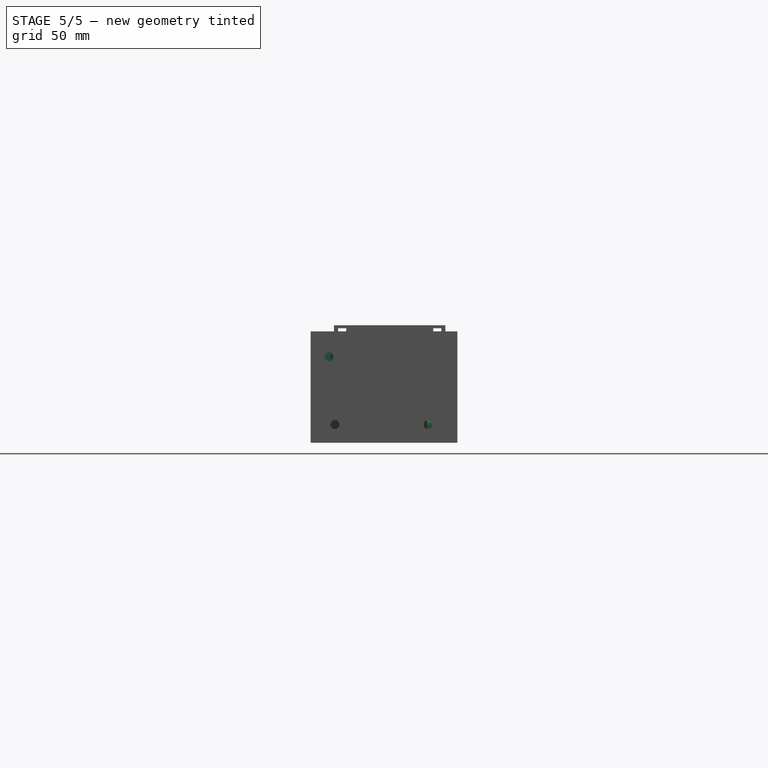
[diagram: stage 5 of 5 — right view after this stage's code; geometry added in this stage tinted green]
FEATURE [Sketcher::SketchObject] Sketch013
  ExternalGeometry = -> [Pad008]
  MapMode = 5
  Placement = pos=(0,0,40) rot=(0,0,1;0rad)
  Support = -> [Pad008]
  sketch-geometry (8):
    g0: LineSegment [constr] StartX=-41.25 StartY=21.55 StartZ=0 EndX=46.75 EndY=21.55 EndZ=0
    g1: LineSegment [constr] StartX=46.75 StartY=21.55 StartZ=0 EndX=46.75 EndY=-21.45 EndZ=0
    g2: LineSegment [constr] StartX=46.75 StartY=-21.45 StartZ=0 EndX=-41.25 EndY=-21.45 EndZ=0
    g3: LineSegment [constr] StartX=-41.25 StartY=-21.45 StartZ=0 EndX=-41.25 EndY=21.55 EndZ=0
    g4: Circle CenterX=-41.25 CenterY=21.55 CenterZ=0 NormalX=0 NormalY=0 NormalZ=1 AngleXU=0 Radius=2.2
    g5: Circle CenterX=46.75 CenterY=-21.45 CenterZ=0 NormalX=0 NormalY=0 NormalZ=1 AngleXU=0 Radius=2.2
    g6: Circle CenterX=46.75 CenterY=21.55 CenterZ=0 NormalX=0 NormalY=0 NormalZ=1 AngleXU=0 Radius=2.2
    g7: Circle CenterX=-41.25 CenterY=-21.45 CenterZ=0 NormalX=0 NormalY=0 NormalZ=1 AngleXU=0 Radius=2.2
  constraints (20):
    c: Coincident(g0,g1)
    c: Coincident(g1,g2)
    c: Coincident(g2,g3)
    c: Coincident(g3,g0)
    c: Horizontal(g0)
    c: Horizontal(g2)
    c: Vertical(g1)
    c: Vertical(g3)
    c: DistanceX(g0,g0) = 88
    c: DistanceY(g3,g3) = 43
    c: DistanceY(g0,g-3) = 8.45
    c: DistanceX(g-3,g0) = 8.75
    c: Coincident(g4,g0)
    c: Coincident(g5,g1)
    c: Equal(g4,g5)
    c: Diameter(g4) = 4.4
    c: Coincident(g6,g0)
    c: Equal(g4,g6)
    c: Coincident(g7,g2)
    c: Equal(g7,g4)
FEATURE [PartDesign::Hole] Hole  label="boardmount_holes"
  BaseFeature = -> Pad008
  Depth = 25
  DepthType = 0
  Diameter = 4.4
  DrillPoint = 1
  DrillPointAngle = 118
  HoleCutCountersinkAngle = 90
  HoleCutDepth = 0
  HoleCutDiameter = 4
  HoleCutType = 0
  ModelActualThread = false
  Profile = -> Sketch013
  Tapered = false
  TaperedAngle = 90
  ThreadAngle = 60
  ThreadClass = 0
  ThreadCutOffInner = 0.0757772
  ThreadCutOffOuter = 0.151554
  ThreadDirection = 0
  ThreadFit = 0
  ThreadPitch = 0.7
  ThreadSize = 5
  ThreadType = 1
  Threaded = false
FEATURE [Sketcher::SketchObject] Sketch014
  ExternalGeometry = -> [Hole]
  MapMode = 5
  Placement = pos=(0,3.3e-15,15) rot=(0,0,1;0rad)
  Support = -> [Hole]
  sketch-geometry (7):
    g0: LineSegment [constr] StartX=115.4 StartY=22.9 StartZ=0 EndX=25.4 EndY=22.9 EndZ=0
    g1: LineSegment [constr] StartX=25.4 StartY=22.9 StartZ=0 EndX=25.4 EndY=-22.1 EndZ=0
    g2: LineSegment [constr] StartX=25.4 StartY=-22.1 StartZ=0 EndX=115.4 EndY=-22.1 EndZ=0
    g3: LineSegment [constr] StartX=115.4 StartY=-22.1 StartZ=0 EndX=115.4 EndY=22.9 EndZ=0
    g4: Circle CenterX=25.4 CenterY=22.9 CenterZ=0 NormalX=0 NormalY=0 NormalZ=1 AngleXU=0 Radius=2.2
    g5: Circle CenterX=115.4 CenterY=22.9 CenterZ=0 NormalX=0 NormalY=0 NormalZ=1 AngleXU=0 Radius=2.2
    g6: Circle CenterX=115.4 CenterY=-22.1 CenterZ=0 NormalX=0 NormalY=0 NormalZ=1 AngleXU=0 Radius=2.2
  constraints (18):
    c: Coincident(g0,g1)
    c: Coincident(g1,g2)
    c: Coincident(g2,g3)
    c: Coincident(g3,g0)
    c: Horizontal(g0)
    c: Horizontal(g2)
    c: Vertical(g1)
    c: Vertical(g3)
    c: DistanceY(g3,g3) = 45
    c: DistanceX(g2,g2) = 90
    c: DistanceX(g2,g-3) = 9.6
    c: DistanceY(g-3,g2) = 7.9
    c: Coincident(g4,g0)
    c: Coincident(g5,g0)
    c: Coincident(g6,g2)
    c: Equal(g4,g5)
    c: Equal(g5,g6)
    c: Diameter(g4) = 4.4
FEATURE [PartDesign::Hole] Hole001  label="tamp_boardmount_holes"
  BaseFeature = -> Hole
  Depth = 10
  DepthType = 0
  Diameter = 4.4
  DrillPoint = 1
  DrillPointAngle = 118
  HoleCutCountersinkAngle = 90
  HoleCutDepth = 0
  HoleCutDiameter = 4
  HoleCutType = 0
  ModelActualThread = false
  Profile = -> Sketch014
  Tapered = false
  TaperedAngle = 90
  ThreadAngle = 0
  ThreadClass = 0
  ThreadCutOffInner = 0
  ThreadCutOffOuter = 0
  ThreadDirection = 0
  ThreadFit = 0
  ThreadPitch = 0
  ThreadSize = 5
  ThreadType = 1
  Threaded = false
FEATURE [Sketcher::SketchObject] Sketch015
  ExternalGeometry = -> [Hole001]
  MapMode = 5
  Placement = pos=(120,0,0) rot=(0.57735,0.57735,0.57735;2.0944rad)
  Support = -> [Hole001]
  sketch-geometry (8):
    g0: LineSegment StartX=32.5 StartY=2.5 StartZ=0 EndX=35 EndY=2.5 EndZ=0
    g1: LineSegment StartX=35 StartY=2.5 StartZ=0 EndX=35 EndY=0 EndZ=0
    g2: LineSegment StartX=35 StartY=0 StartZ=0 EndX=32.5 EndY=0 EndZ=0
    g3: LineSegment StartX=32.5 StartY=0 StartZ=0 EndX=32.5 EndY=2.5 EndZ=0
    g4: LineSegment StartX=-32.5 StartY=47.5 StartZ=0 EndX=-35 EndY=47.5 EndZ=0
    g5: LineSegment StartX=-35 StartY=47.5 StartZ=0 EndX=-35 EndY=50 EndZ=0
    g6: LineSegment StartX=-35 StartY=50 StartZ=0 EndX=-32.5 EndY=50 EndZ=0
    g7: LineSegment StartX=-32.5 StartY=50 StartZ=0 EndX=-32.5 EndY=47.5 EndZ=0
  constraints (20):
    c: Coincident(g0,g1)
    c: Coincident(g1,g2)
    c: Coincident(g2,g3)
    c: Coincident(g3,g0)
    c: Horizontal(g0)
    c: Horizontal(g2)
    c: Vertical(g1)
    c: Vertical(g3)
    c: Coincident(g0,g-6)
    c: Coincident(g1,g-7)
    c: Coincident(g4,g5)
    c: Coincident(g5,g6)
    c: Coincident(g6,g7)
    c: Coincident(g7,g4)
    c: Horizontal(g4)
    c: Horizontal(g6)
    c: Vertical(g5)
    c: Vertical(g7)
    c: Coincident(g4,g-3)
    c: Coincident(g5,g-5)
FEATURE [PartDesign::Pocket] Pocket005  label="lightlip2"
  BaseFeature = -> Hole001
  Length = 5
  Length2 = 100
  Profile = -> Sketch015
  Type = 1
FEATURE [Sketcher::SketchObject] Sketch016
  ExternalGeometry = -> [Pocket005]
  MapMode = 5
  Placement = pos=(-125,0,0) rot=(0.57735,-0.57735,-0.57735;2.0944rad)
  Support = -> [Pocket005]
  sketch-geometry (10):
    g0: LineSegment [constr] StartX=-16 StartY=43.5 StartZ=0 EndX=16 EndY=43.5 EndZ=0
    g1: LineSegment [constr] StartX=16 StartY=43.5 StartZ=0 EndX=16 EndY=11.5 EndZ=0
    g2: LineSegment [constr] StartX=16 StartY=11.5 StartZ=0 EndX=-16 EndY=11.5 EndZ=0
    g3: LineSegment [constr] StartX=-16 StartY=11.5 StartZ=0 EndX=-16 EndY=43.5 EndZ=0
    g4: LineSegment [constr] StartX=-16 StartY=27.5 StartZ=0 EndX=16 EndY=27.5 EndZ=0
    g5: LineSegment [constr] StartX=0 StartY=43.5 StartZ=0 EndX=0 EndY=11.5 EndZ=0
    g6: Circle CenterX=-16 CenterY=43.5 CenterZ=0 NormalX=0 NormalY=0 NormalZ=1 AngleXU=0 Radius=2.2
    g7: Circle CenterX=16 CenterY=43.5 CenterZ=0 NormalX=0 NormalY=0 NormalZ=1 AngleXU=0 Radius=2.2
    g8: Circle CenterX=16 CenterY=11.5 CenterZ=0 NormalX=0 NormalY=0 NormalZ=1 AngleXU=0 Radius=2.2
    g9: Circle CenterX=-16 CenterY=11.5 CenterZ=0 NormalX=0 NormalY=0 NormalZ=1 AngleXU=0 Radius=2.2
  constraints (26):
    c: Coincident(g0,g1)
    c: Coincident(g1,g2)
    c: Coincident(g2,g3)
    c: Coincident(g3,g0)
    c: Horizontal(g0)
    c: Horizontal(g2)
    c: Vertical(g1)
    c: Vertical(g3)
    c: Equal(g1,g0)
    c: PointOnObject(g4,g1)
    c: Horizontal(g4)
    c: PointOnObject(g5,g2)
    c: Vertical(g5)
    c: Symmetric(g0,g0,g5)
    c: Symmetric(g0,g2,g4)
    c: PointOnObject(g-3,g5)
    c: PointOnObject(g-3,g4)
    c: DistanceY(g1,g1) = 32
    c: Coincident(g6,g0)
    c: Coincident(g7,g0)
    c: Coincident(g8,g1)
    c: Coincident(g9,g2)
    c: Equal(g6,g7)
    c: Equal(g7,g8)
    c: Equal(g8,g9)
    c: Diameter(g6) = 4.4
FEATURE [PartDesign::Hole] Hole002  label="fanmount_holes"
  BaseFeature = -> Pocket005
  Depth = 25
  DepthType = 0
  Diameter = 4.4
  DrillPoint = 1
  DrillPointAngle = 118
  HoleCutCountersinkAngle = 90
  HoleCutDepth = 0
  HoleCutDiameter = 4
  HoleCutType = 0
  ModelActualThread = false
  Profile = -> Sketch016
  Tapered = false
  TaperedAngle = 90
  ThreadAngle = 0
  ThreadClass = 0
  ThreadCutOffInner = 0
  ThreadCutOffOuter = 0
  ThreadDirection = 0
  ThreadFit = 0
  ThreadPitch = 0
  ThreadSize = 5
  ThreadType = 1
  Threaded = false
FEATURE [Sketcher::SketchObject] Sketch017
  ExternalGeometry = -> [Hole002]
  MapMode = 5
  Placement = pos=(0,0,47.5) rot=(0,0,1;0rad)
  Support = -> [Hole002]
  sketch-geometry (12):
    g0: LineSegment [constr] StartX=-100 StartY=-26 StartZ=0 EndX=-90 EndY=-26 EndZ=0
    g1: ArcOfCircle CenterX=-95 CenterY=-26 CenterZ=0 NormalX=0 NormalY=0 NormalZ=1 AngleXU=0 Radius=5 StartAngle=2.7e-15 EndAngle=3.14159
    g2: LineSegment [constr] StartX=90 StartY=-26 StartZ=0 EndX=100 EndY=-26 EndZ=0
    g3: ArcOfCircle CenterX=95 CenterY=-26 CenterZ=0 NormalX=0 NormalY=0 NormalZ=1 AngleXU=0 Radius=5 StartAngle=-2.7e-15 EndAngle=3.14159
    g4: LineSegment StartX=-100 StartY=-26 StartZ=0 EndX=-100 EndY=-35 EndZ=0
    g5: LineSegment StartX=-90 StartY=-35 StartZ=0 EndX=-90 EndY=-26 EndZ=0
    g6: LineSegment StartX=-90 StartY=-35 StartZ=0 EndX=-100 EndY=-35 EndZ=0
    g7: LineSegment StartX=90 StartY=-26 StartZ=0 EndX=90 EndY=-35 EndZ=0
    g8: LineSegment StartX=90 StartY=-35 StartZ=0 EndX=100 EndY=-35 EndZ=0
    g9: LineSegment StartX=100 StartY=-26 StartZ=0 EndX=100 EndY=-35 EndZ=0
    g10: Circle CenterX=-95 CenterY=-26 CenterZ=0 NormalX=0 NormalY=0 NormalZ=1 AngleXU=0 Radius=2.8
    g11: Circle CenterX=95 CenterY=-26 CenterZ=0 NormalX=0 NormalY=0 NormalZ=1 AngleXU=0 Radius=2.8
  constraints (34):
    c: Horizontal(g0)
    c: PointOnObject(g1,g0)
    c: Coincident(g1,g0)
    c: Coincident(g1,g0)
    c: Horizontal(g2)
    c: PointOnObject(g3,g2)
    c: Coincident(g3,g2)
    c: Coincident(g3,g2)
    c: Equal(g3,g1)
    c: DistanceX(g0,g0) = 10
    c: Coincident(g4,g1)
    c: Vertical(g4)
    c: Coincident(g5,g1)
    c: Vertical(g5)
    c: Coincident(g6,g5)
    c: Coincident(g6,g4)
    c: Horizontal(g6)
    c: Coincident(g7,g3)
    c: Vertical(g7)
    c: Coincident(g8,g7)
    c: Horizontal(g8)
    c: Coincident(g9,g3)
    c: Coincident(g9,g8)
    c: Vertical(g9)
    c: Coincident(g10,g1)
    c: Coincident(g11,g3)
    c: Equal(g7,g5)
    c: Equal(g10,g11)
    c: Diameter(g10) = 5.6
    c: PointOnObject(g5,g-3)
    c: PointOnObject(g7,g-3)
    c: DistanceY(g5,g5) = 9
    c: DistanceX(g1,g-1) = 95
    c: DistanceX(g-1,g3) = 95
FEATURE [PartDesign::Pad] Pad009  label="intercaseclips1"
  BaseFeature = -> Hole002
  Length = 10
  Length2 = 100
  Profile = -> Sketch017
  Reversed = true
  Type = 0
FEATURE [Sketcher::SketchObject] Sketch019
  MapMode = 5
  Placement = pos=(0,32.5,0) rot=(0,0.707107,0.707107;3.14159rad)
  Support = -> [Pad009]
  sketch-geometry (12):
    g0: LineSegment [constr] StartX=-100 StartY=9 StartZ=0 EndX=-90 EndY=9 EndZ=0
    g1: LineSegment [constr] StartX=90 StartY=9 StartZ=0 EndX=100 EndY=9 EndZ=0
    g2: ArcOfCircle CenterX=-95 CenterY=9 CenterZ=0 NormalX=0 NormalY=0 NormalZ=1 AngleXU=0 Radius=5 StartAngle=1e-16 EndAngle=3.14159
    g3: ArcOfCircle CenterX=95 CenterY=9 CenterZ=0 NormalX=0 NormalY=0 NormalZ=1 AngleXU=0 Radius=5 StartAngle=7e-16 EndAngle=3.14159
    g4: LineSegment StartX=-100 StartY=9 StartZ=0 EndX=-100 EndY=0 EndZ=0
    g5: LineSegment StartX=-100 StartY=0 StartZ=0 EndX=-90 EndY=0 EndZ=0
    g6: LineSegment StartX=-90 StartY=0 StartZ=0 EndX=-90 EndY=9 EndZ=0
    g7: LineSegment StartX=90 StartY=9 StartZ=0 EndX=90 EndY=0 EndZ=0
    g8: LineSegment StartX=90 StartY=0 StartZ=0 EndX=100 EndY=0 EndZ=0
    g9: LineSegment StartX=100 StartY=0 StartZ=0 EndX=100 EndY=9 EndZ=0
    g10: Circle CenterX=-95 CenterY=9 CenterZ=0 NormalX=0 NormalY=0 NormalZ=1 AngleXU=0 Radius=2.8
    g11: Circle CenterX=95 CenterY=9 CenterZ=0 NormalX=0 NormalY=0 NormalZ=1 AngleXU=0 Radius=2.8
  constraints (32):
    c: Horizontal(g0)
    c: Horizontal(g1)
    c: PointOnObject(g2,g0)
    c: Coincident(g2,g0)
    c: Coincident(g2,g0)
    c: PointOnObject(g3,g1)
    c: Coincident(g3,g1)
    c: Coincident(g3,g1)
    c: Tangent(g2,g4) = -1.5708
    c: Coincident(g4,g5)
    c: PointOnObject(g5,g-1)
    c: Horizontal(g5)
    c: Coincident(g5,g6)
    c: Coincident(g6,g2)
    c: Tangent(g3,g7) = -1.5708
    c: Coincident(g7,g8)
    c: PointOnObject(g8,g-1)
    c: Horizontal(g8)
    c: Coincident(g8,g9)
    c: Coincident(g9,g3)
    c: Vertical(g9)
    c: Vertical(g6)
    c: Equal(g2,g3)
    c: Diameter(g2) = 10
    c: Equal(g7,g6)
    c: Coincident(g10,g2)
    c: Coincident(g11,g3)
    c: Equal(g10,g11)
    c: Diameter(g10) = 5.6
    c: DistanceY(g6,g6) = 9
    c: DistanceX(g2,g-1) = 95
    c: DistanceX(g-1,g3) = 95
FEATURE [PartDesign::Pad] Pad010  label="intercaseclips2"
  BaseFeature = -> Pad009
  Length = 10
  Length2 = 100
  Profile = -> Sketch019
  Reversed = true
  Type = 0
FEATURE [Sketcher::SketchObject] Sketch020
  ExternalGeometry = -> [Pad010]
  MapMode = 5
  Placement = pos=(-125,0,0) rot=(0.57735,-0.57735,-0.57735;2.0944rad)
  Support = -> [Pad010]
  sketch-geometry (8):
    g0: LineSegment [constr] StartX=-25 StartY=45 StartZ=0 EndX=25 EndY=45 EndZ=0
    g1: LineSegment [constr] StartX=25 StartY=45 StartZ=0 EndX=25 EndY=10 EndZ=0
    g2: LineSegment [constr] StartX=25 StartY=10 StartZ=0 EndX=-25 EndY=10 EndZ=0
    g3: LineSegment [constr] StartX=-25 StartY=10 StartZ=0 EndX=-25 EndY=45 EndZ=0
    g4: Circle CenterX=-25 CenterY=45 CenterZ=0 NormalX=0 NormalY=0 NormalZ=1 AngleXU=0 Radius=2.2
    g5: Circle CenterX=25 CenterY=45 CenterZ=0 NormalX=0 NormalY=0 NormalZ=1 AngleXU=0 Radius=2.2
    g6: Circle CenterX=25 CenterY=10 CenterZ=0 NormalX=0 NormalY=0 NormalZ=1 AngleXU=0 Radius=2.2
    g7: Circle CenterX=-25 CenterY=10 CenterZ=0 NormalX=0 NormalY=0 NormalZ=1 AngleXU=0 Radius=2.2
  constraints (19):
    c: Coincident(g0,g1)
    c: Coincident(g1,g2)
    c: Coincident(g2,g3)
    c: Coincident(g3,g0)
    c: Horizontal(g0)
    c: Horizontal(g2)
    c: Vertical(g1)
    c: Vertical(g3)
    c: Symmetric(g0,g1,g-3)
    c: DistanceY(g1,g1) = 35
    c: DistanceX(g0,g0) = 50
    c: Coincident(g4,g0)
    c: Coincident(g5,g0)
    c: Coincident(g6,g1)
    c: Coincident(g7,g2)
    c: Diameter(g7) = 4.4
    c: Equal(g7,g4)
    c: Equal(g7,g5)
    c: Equal(g7,g6)
FEATURE [PartDesign::Hole] Hole003  label="baffle_mount"
  BaseFeature = -> Pad010
  Depth = 25
  DepthType = 0
  Diameter = 4.4
  DrillPoint = 1
  DrillPointAngle = 118
  HoleCutCountersinkAngle = 90
  HoleCutDepth = 0
  HoleCutDiameter = 4
  HoleCutType = 0
  ModelActualThread = false
  Profile = -> Sketch020
  Tapered = false
  TaperedAngle = 90
  ThreadAngle = 0
  ThreadClass = 0
  ThreadCutOffInner = 0
  ThreadCutOffOuter = 0
  ThreadDirection = 0
  ThreadFit = 0
  ThreadPitch = 0
  ThreadSize = 5
  ThreadType = 1
  Threaded = false
FEATURE [Sketcher::SketchObject] Sketch021
  ExternalGeometry = -> [Hole003]
  MapMode = 5
  Placement = pos=(120,0,0) rot=(0.57735,0.57735,0.57735;2.0944rad)
  Support = -> [Hole003]
  sketch-geometry (20):
    g0: LineSegment [constr] StartX=-26 StartY=47.5 StartZ=0 EndX=-26 EndY=37.5 EndZ=0
    g1: LineSegment [constr] StartX=-28 StartY=9 StartZ=0 EndX=-18 EndY=9 EndZ=0
    g2: LineSegment [constr] StartX=18 StartY=9 StartZ=0 EndX=28 EndY=9 EndZ=0
    g3: ArcOfCircle CenterX=-26 CenterY=42.5 CenterZ=0 NormalX=0 NormalY=0 NormalZ=1 AngleXU=0 Radius=5 StartAngle=4.71239 EndAngle=7.85398
    g4: ArcOfCircle CenterX=-23 CenterY=9 CenterZ=0 NormalX=0 NormalY=0 NormalZ=1 AngleXU=0 Radius=5 StartAngle=0 EndAngle=3.14159
    g5: ArcOfCircle CenterX=23 CenterY=9 CenterZ=0 NormalX=0 NormalY=0 NormalZ=1 AngleXU=0 Radius=5 StartAngle=0 EndAngle=3.14159
    g6: Circle CenterX=-26 CenterY=42.5 CenterZ=0 NormalX=0 NormalY=0 NormalZ=1 AngleXU=0 Radius=2.8
    g7: Circle CenterX=-23 CenterY=9 CenterZ=0 NormalX=0 NormalY=0 NormalZ=1 AngleXU=0 Radius=2.8
    g8: Circle CenterX=23 CenterY=9 CenterZ=0 NormalX=0 NormalY=0 NormalZ=1 AngleXU=0 Radius=2.8
    g9: LineSegment StartX=-26 StartY=47.5 StartZ=0 EndX=-35 EndY=47.5 EndZ=0
    g10: LineSegment StartX=-35 StartY=47.5 StartZ=0 EndX=-35 EndY=37.5 EndZ=0
    g11: LineSegment StartX=-35 StartY=37.5 StartZ=0 EndX=-26 EndY=37.5 EndZ=0
    g12: LineSegment StartX=-28 StartY=9 StartZ=0 EndX=-28 EndY=0 EndZ=0
    g13: LineSegment StartX=-28 StartY=0 StartZ=0 EndX=-18 EndY=0 EndZ=0
    g14: LineSegment StartX=-18 StartY=0 StartZ=0 EndX=-18 EndY=9 EndZ=0
    g15: LineSegment StartX=18 StartY=9 StartZ=0 EndX=18 EndY=0 EndZ=0
    g16: LineSegment StartX=18 StartY=0 StartZ=0 EndX=28 EndY=0 EndZ=0
    g17: LineSegment StartX=28 StartY=0 StartZ=0 EndX=28 EndY=9 EndZ=0
    g18: LineSegment [constr] StartX=18 StartY=0 StartZ=0 EndX=0 EndY=0 EndZ=0
    g19: LineSegment [constr] StartX=0 StartY=0 StartZ=0 EndX=-18 EndY=0 EndZ=0
  constraints (51):
    c: Vertical(g0)
    c: Horizontal(g1)
    c: Horizontal(g2)
    c: PointOnObject(g3,g0)
    c: Coincident(g3,g0)
    c: Coincident(g3,g0)
    c: PointOnObject(g4,g1)
    c: Coincident(g4,g1)
    c: Coincident(g4,g1)
    c: PointOnObject(g5,g2)
    c: Coincident(g5,g2)
    c: Coincident(g5,g2)
    c: Coincident(g6,g3)
    c: Coincident(g7,g4)
    c: Coincident(g8,g5)
    c: Tangent(g3,g9) = -1.5708
    c: Coincident(g9,g10)
    c: Vertical(g10)
    c: Coincident(g10,g11)
    c: Coincident(g11,g3)
    c: Tangent(g4,g12) = -1.5708
    c: Coincident(g12,g13)
    c: PointOnObject(g13,g-1)
    c: Horizontal(g13)
    c: Coincident(g13,g14)
    c: Coincident(g14,g4)
    c: Vertical(g14)
    c: Tangent(g5,g15) = -1.5708
    c: Coincident(g15,g16)
    c: PointOnObject(g16,g-1)
    c: Horizontal(g16)
    c: Coincident(g16,g17)
    c: Coincident(g17,g5)
    c: Vertical(g17)
    c: Horizontal(g11)
    c: Equal(g4,g5)
    c: Equal(g5,g3)
    c: Equal(g6,g7)
    c: Equal(g7,g8)
    c: Equal(g9,g12)
    c: Equal(g12,g15)
    c: Coincident(g18,g15)
    c: Coincident(g18,g-1)
    c: Coincident(g19,g-1)
    c: Coincident(g19,g13)
    c: Equal(g18,g19)
    c: DistanceY(g14,g14) = 9
    c: Diameter(g4) = 10
    c: Diameter(g7) = 5.6
    c: DistanceX(g18,g18) = 18
    c: Coincident(g9,g-3)
FEATURE [PartDesign::Pad] Pad011  label="intercaseclips3"
  BaseFeature = -> Hole003
  Length = 10
  Length2 = 100
  Profile = -> Sketch021
  Reversed = true
  Type = 0
FEATURE [Sketcher::SketchObject] Sketch022
  MapMode = 5
  Placement = pos=(0,-30,0) rot=(0,0.707107,0.707107;3.14159rad)
  Support = -> [Pad011]
  sketch-geometry (4):
    g0: ArcOfCircle CenterX=-75 CenterY=20 CenterZ=0 NormalX=0 NormalY=0 NormalZ=1 AngleXU=0 Radius=3.5 StartAngle=1.5708 EndAngle=4.71239
    g1: ArcOfCircle CenterX=-60 CenterY=20 CenterZ=0 NormalX=0 NormalY=0 NormalZ=1 AngleXU=0 Radius=3.5 StartAngle=4.71239 EndAngle=7.85398
    g2: LineSegment StartX=-75 StartY=16.5 StartZ=0 EndX=-60 EndY=16.5 EndZ=0
    g3: LineSegment StartX=-75 StartY=23.5 StartZ=0 EndX=-60 EndY=23.5 EndZ=0
  constraints (10):
    c: Tangent(g0,g3) = 1.5708
    c: Tangent(g0,g2) = -1.5708
    c: Tangent(g2,g1) = -1.5708
    c: Tangent(g3,g1) = 1.5708
    c: Horizontal(g2)
    c: Equal(g0,g1)
    c: DistanceX(g2,g2) = 15
    c: Diameter(g1) = 7
    c: DistanceY(g-1,g1) = 20
    c: DistanceX(g1,g-1) = 60
FEATURE [PartDesign::Pocket] Pocket006  label="wiring_hole"
  BaseFeature = -> Pad011
  Length = 0
  Length2 = 100
  Profile = -> Sketch022
  Type = 2
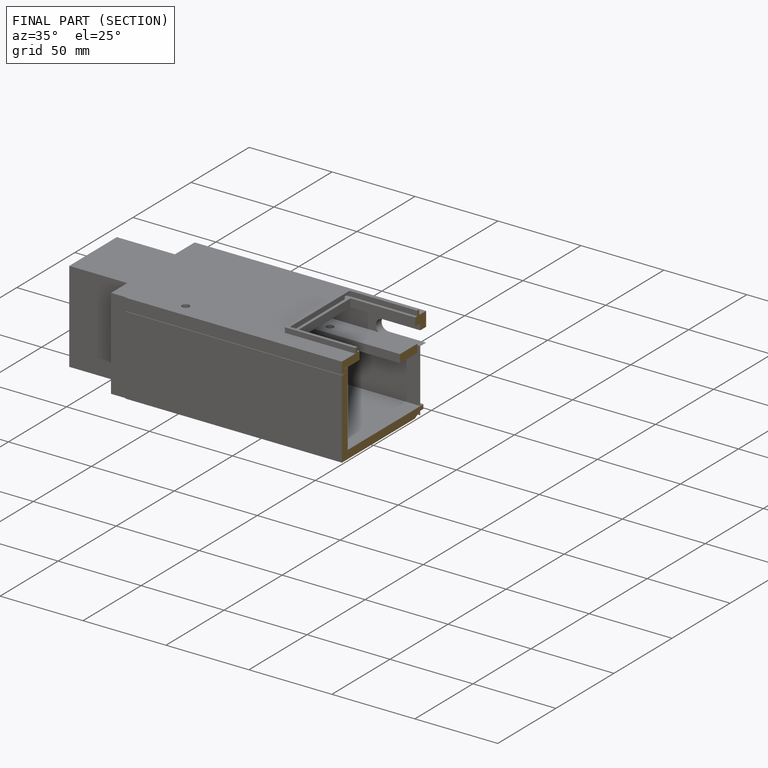
[diagram: finished part — half-section view (interior)]
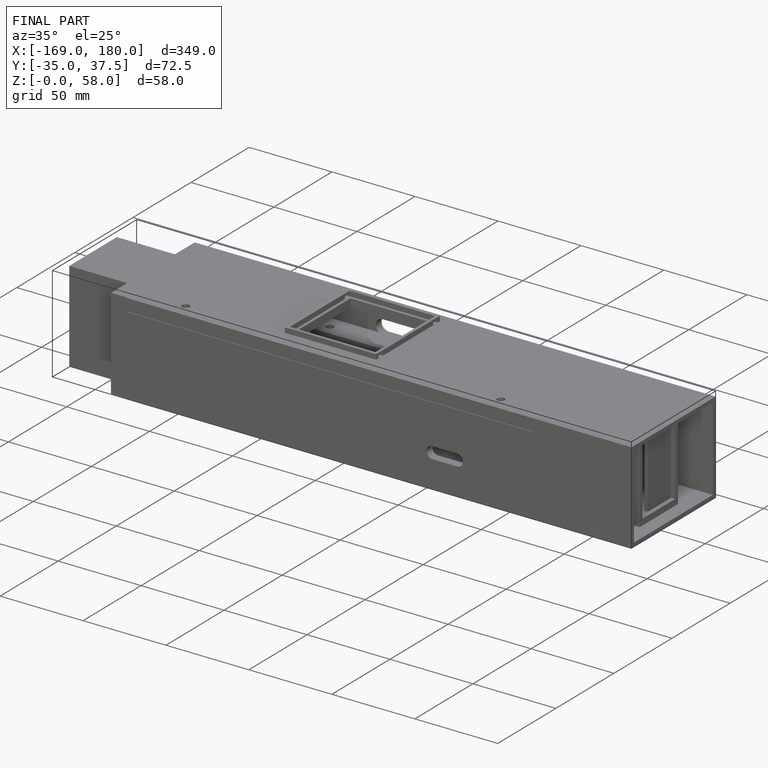
[diagram: finished part — iso view with bounding-box wireframe]
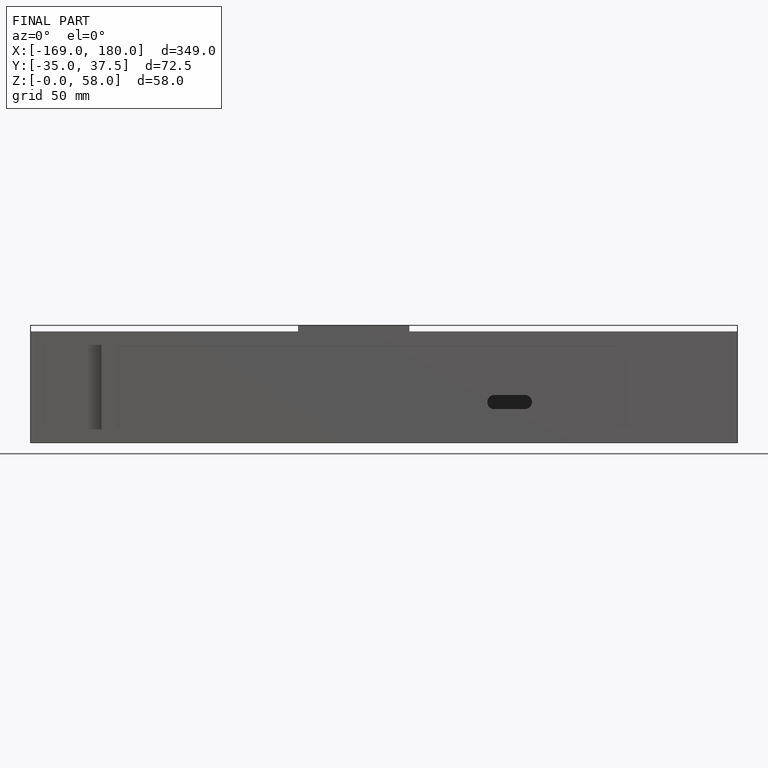
[diagram: finished part — front view with bounding-box wireframe]
